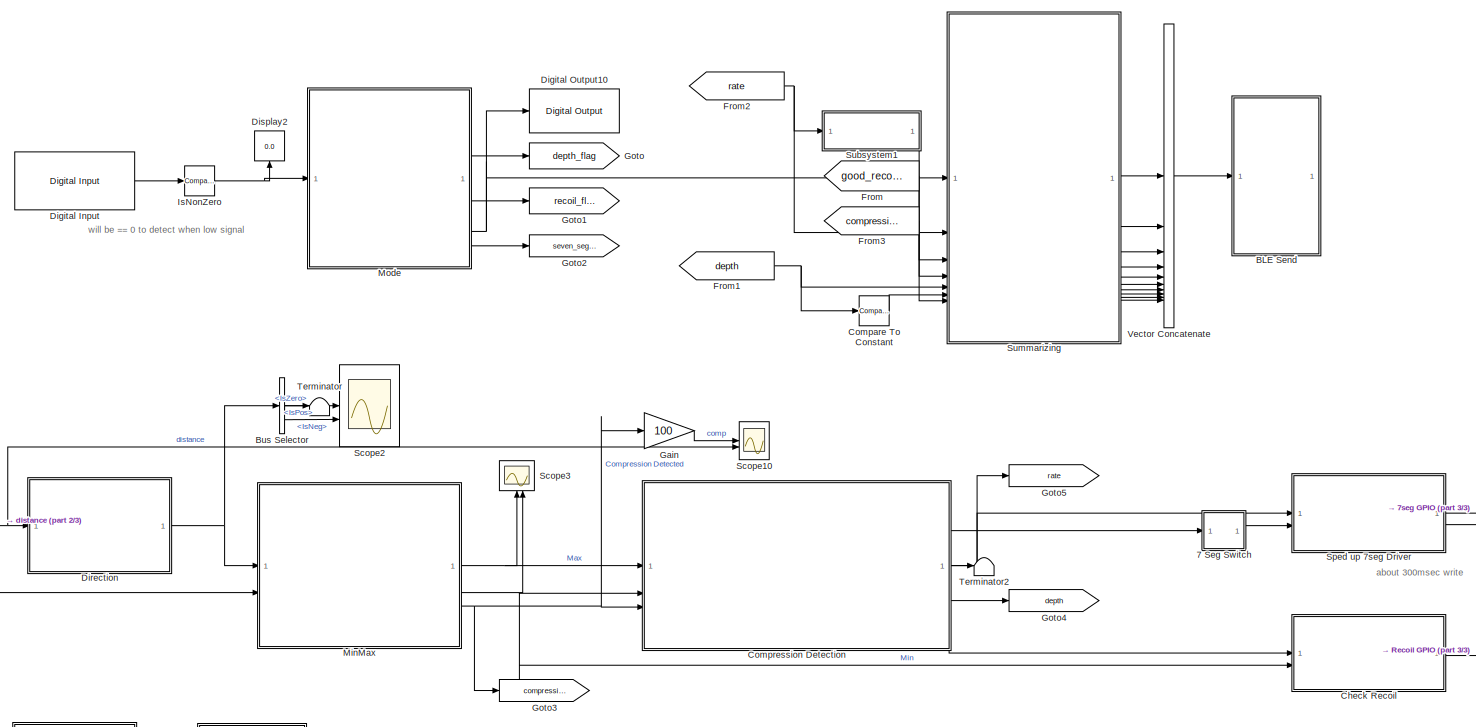
[diagram: root canvas - part 1/3, center side, full height]
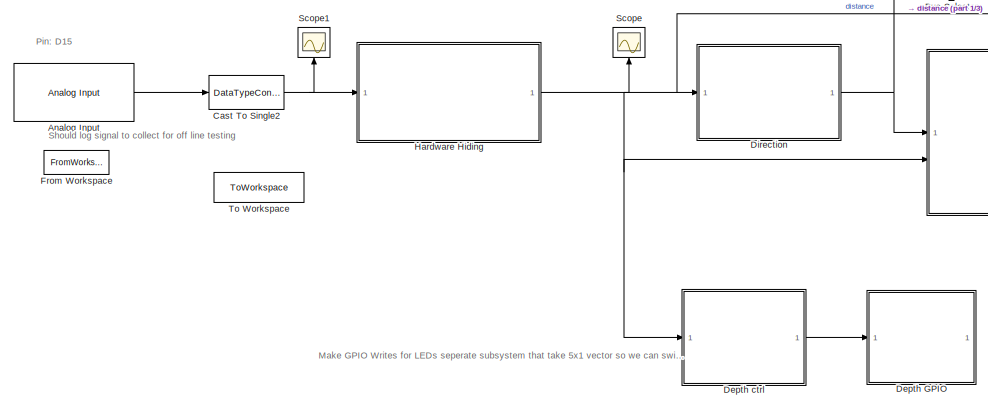
[diagram: root canvas - part 2/3, bottom left region]
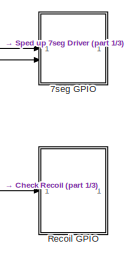
[diagram: root canvas - part 3/3, bottom right region]
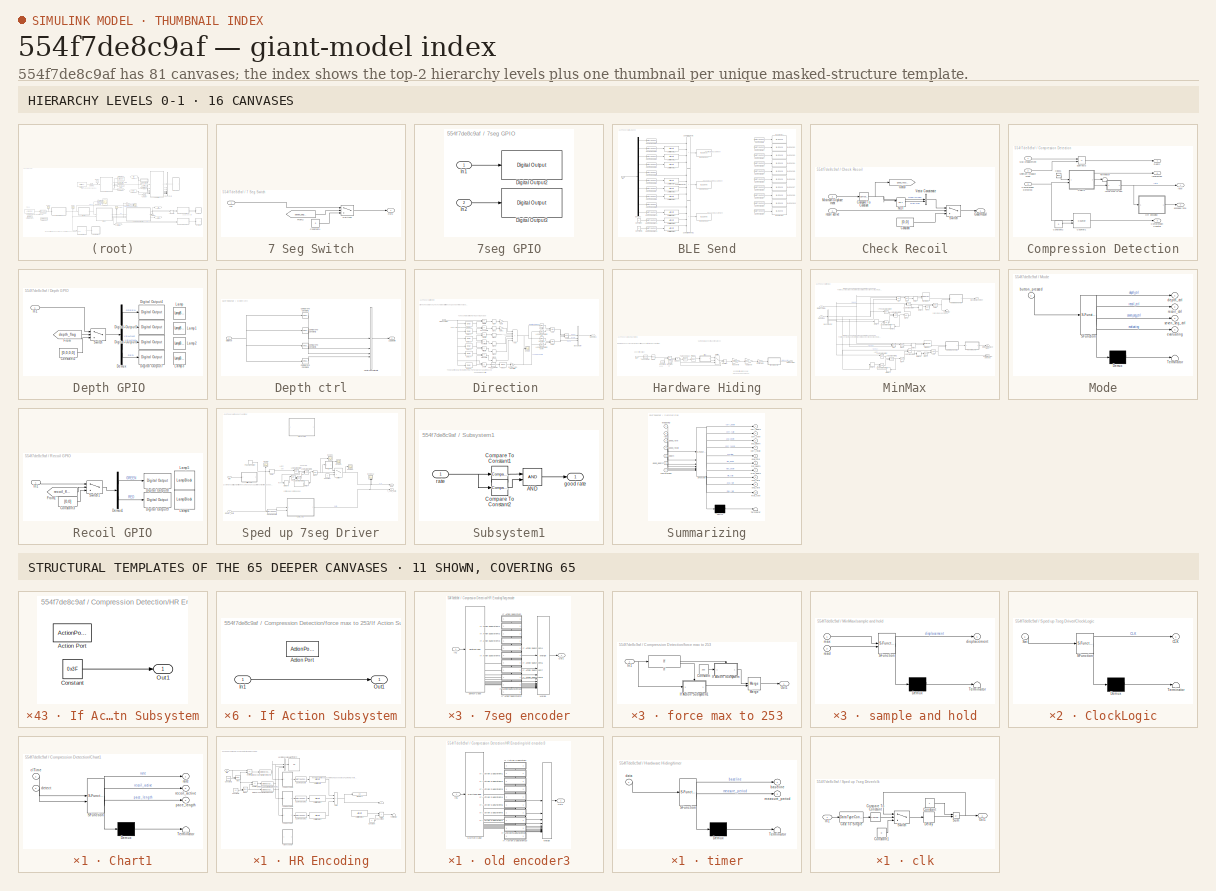
[diagram: thumbnail index - top-2 hierarchy levels (16 canvases) + 11 structural-template representatives of the remaining 65 canvases]
MODEL slx_554f7de8c9af
KIND model
CONFIG AbsTol = auto
CONFIG EnableMultiTasking = off
CONFIG FixedStep = 1e-3
CONFIG MaxStep = auto
CONFIG MinStep = auto
CONFIG RelTol = 1e-3
CONFIG SampleTimeConstraint = Unconstrained
CONFIG SolverName = FixedStepAuto
CONFIG StartTime = 0.0
CONFIG StopTime = inf
BLOCK [SubSystem] 7 Seg Switch
BLOCK [Constant] 7 Seg Switch/Constant1
  Value = 0
BLOCK [From] 7 Seg Switch/From2
  GotoTag = seven_seg_flag
  TagVisibility = global
BLOCK [Inport] 7 Seg Switch/In1
BLOCK [Outport] 7 Seg Switch/Out1
BLOCK [Switch] 7 Seg Switch/Switch2
  Criteria = u2 > Threshold
  InputSameDT = off
  SaturateOnIntegerOverflow = off
BLOCK [SubSystem] 7seg GPIO
BLOCK [Reference] 7seg GPIO/Digital Output2  REF=arduinolib/Digital Output
  SourceBlock = arduinolib/Digital Output
  SourceType = Arduino Digital Output
BLOCK [Reference] 7seg GPIO/Digital Output3  REF=arduinolib/Digital Output
  SourceBlock = arduinolib/Digital Output
  SourceType = Arduino Digital Output
BLOCK [Inport] 7seg GPIO/In1
BLOCK [Inport] 7seg GPIO/In2
  Port = 2
BLOCK [Reference] Analog Input  REF=arduinolib/Analog Input
  SourceBlock = arduinolib/Analog Input
  SourceType = Arduino Analog Input
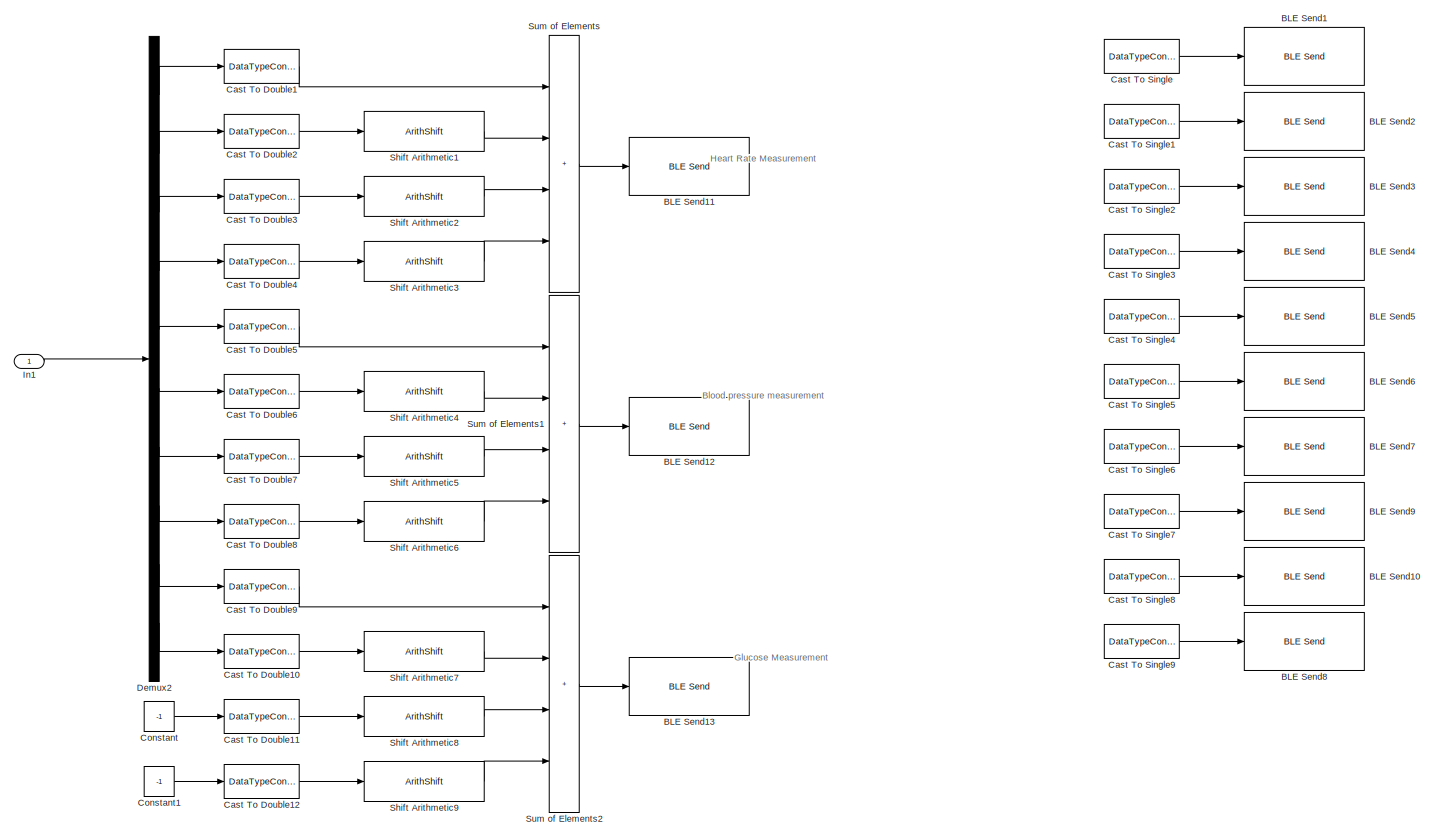
[diagram: BLE Send - part 1/1, most of the canvas]
BLOCK [SubSystem] BLE Send
BLOCK [Reference] BLE Send/BLE Send1  REF=arduinolib/BLE Send
  Commented = on
  SourceBlock = arduinolib/BLE Send
  SourceType = codertarget.arduinobase.internal.arduinoBLESend
BLOCK [Reference] BLE Send/BLE Send10  REF=arduinolib/BLE Send
  Commented = on
  SourceBlock = arduinolib/BLE Send
  SourceType = codertarget.arduinobase.internal.arduinoBLESend
BLOCK [Reference] BLE Send/BLE Send11  REF=arduinolib/BLE Send
  SourceBlock = arduinolib/BLE Send
  SourceType = codertarget.arduinobase.internal.arduinoBLESend
BLOCK [Reference] BLE Send/BLE Send12  REF=arduinolib/BLE Send
  SourceBlock = arduinolib/BLE Send
  SourceType = codertarget.arduinobase.internal.arduinoBLESend
BLOCK [Reference] BLE Send/BLE Send13  REF=arduinolib/BLE Send
  SourceBlock = arduinolib/BLE Send
  SourceType = codertarget.arduinobase.internal.arduinoBLESend
BLOCK [Reference] BLE Send/BLE Send2  REF=arduinolib/BLE Send
  Commented = on
  SourceBlock = arduinolib/BLE Send
  SourceType = codertarget.arduinobase.internal.arduinoBLESend
BLOCK [Reference] BLE Send/BLE Send3  REF=arduinolib/BLE Send
  Commented = on
  SourceBlock = arduinolib/BLE Send
  SourceType = codertarget.arduinobase.internal.arduinoBLESend
BLOCK [Reference] BLE Send/BLE Send4  REF=arduinolib/BLE Send
  Commented = on
  SourceBlock = arduinolib/BLE Send
  SourceType = codertarget.arduinobase.internal.arduinoBLESend
BLOCK [Reference] BLE Send/BLE Send5  REF=arduinolib/BLE Send
  Commented = on
  SourceBlock = arduinolib/BLE Send
  SourceType = codertarget.arduinobase.internal.arduinoBLESend
BLOCK [Reference] BLE Send/BLE Send6  REF=arduinolib/BLE Send
  Commented = on
  SourceBlock = arduinolib/BLE Send
  SourceType = codertarget.arduinobase.internal.arduinoBLESend
BLOCK [Reference] BLE Send/BLE Send7  REF=arduinolib/BLE Send
  Commented = on
  SourceBlock = arduinolib/BLE Send
  SourceType = codertarget.arduinobase.internal.arduinoBLESend
BLOCK [Reference] BLE Send/BLE Send8  REF=arduinolib/BLE Send
  Commented = on
  SourceBlock = arduinolib/BLE Send
  SourceType = codertarget.arduinobase.internal.arduinoBLESend
BLOCK [Reference] BLE Send/BLE Send9  REF=arduinolib/BLE Send
  Commented = on
  SourceBlock = arduinolib/BLE Send
  SourceType = codertarget.arduinobase.internal.arduinoBLESend
BLOCK [DataTypeConversion] BLE Send/Cast To Double1
  OutDataTypeStr = uint32
  RndMeth = Floor
  SaturateOnIntegerOverflow = off
BLOCK [DataTypeConversion] BLE Send/Cast To Double10
  OutDataTypeStr = uint32
  RndMeth = Floor
  SaturateOnIntegerOverflow = off
BLOCK [DataTypeConversion] BLE Send/Cast To Double11
  OutDataTypeStr = uint32
  RndMeth = Floor
  SaturateOnIntegerOverflow = off
BLOCK [DataTypeConversion] BLE Send/Cast To Double12
  OutDataTypeStr = uint32
  RndMeth = Floor
  SaturateOnIntegerOverflow = off
BLOCK [DataTypeConversion] BLE Send/Cast To Double2
  OutDataTypeStr = uint32
  RndMeth = Floor
  SaturateOnIntegerOverflow = off
BLOCK [DataTypeConversion] BLE Send/Cast To Double3
  OutDataTypeStr = uint32
  RndMeth = Floor
  SaturateOnIntegerOverflow = off
BLOCK [DataTypeConversion] BLE Send/Cast To Double4
  OutDataTypeStr = uint32
  RndMeth = Floor
  SaturateOnIntegerOverflow = off
BLOCK [DataTypeConversion] BLE Send/Cast To Double5
  OutDataTypeStr = uint32
  RndMeth = Floor
  SaturateOnIntegerOverflow = off
BLOCK [DataTypeConversion] BLE Send/Cast To Double6
  OutDataTypeStr = uint32
  RndMeth = Floor
  SaturateOnIntegerOverflow = off
BLOCK [DataTypeConversion] BLE Send/Cast To Double7
  OutDataTypeStr = uint32
  RndMeth = Floor
  SaturateOnIntegerOverflow = off
BLOCK [DataTypeConversion] BLE Send/Cast To Double8
  OutDataTypeStr = uint32
  RndMeth = Floor
  SaturateOnIntegerOverflow = off
BLOCK [DataTypeConversion] BLE Send/Cast To Double9
  OutDataTypeStr = uint32
  RndMeth = Floor
  SaturateOnIntegerOverflow = off
BLOCK [DataTypeConversion] BLE Send/Cast To Single
  Commented = on
  OutDataTypeStr = int8
  RndMeth = Floor
  SaturateOnIntegerOverflow = off
BLOCK [DataTypeConversion] BLE Send/Cast To Single1
  Commented = on
  OutDataTypeStr = int8
  RndMeth = Floor
  SaturateOnIntegerOverflow = off
BLOCK [DataTypeConversion] BLE Send/Cast To Single2
  Commented = on
  OutDataTypeStr = int8
  RndMeth = Floor
  SaturateOnIntegerOverflow = off
BLOCK [DataTypeConversion] BLE Send/Cast To Single3
  Commented = on
  OutDataTypeStr = int8
  RndMeth = Floor
  SaturateOnIntegerOverflow = off
BLOCK [DataTypeConversion] BLE Send/Cast To Single4
  Commented = on
  OutDataTypeStr = int8
  RndMeth = Floor
  SaturateOnIntegerOverflow = off
BLOCK [DataTypeConversion] BLE Send/Cast To Single5
  Commented = on
  OutDataTypeStr = int8
  RndMeth = Floor
  SaturateOnIntegerOverflow = off
BLOCK [DataTypeConversion] BLE Send/Cast To Single6
  Commented = on
  OutDataTypeStr = int8
  RndMeth = Floor
  SaturateOnIntegerOverflow = off
BLOCK [DataTypeConversion] BLE Send/Cast To Single7
  Commented = on
  OutDataTypeStr = int8
  RndMeth = Floor
  SaturateOnIntegerOverflow = off
BLOCK [DataTypeConversion] BLE Send/Cast To Single8
  Commented = on
  OutDataTypeStr = int8
  RndMeth = Floor
  SaturateOnIntegerOverflow = off
BLOCK [DataTypeConversion] BLE Send/Cast To Single9
  Commented = on
  OutDataTypeStr = int8
  RndMeth = Floor
  SaturateOnIntegerOverflow = off
BLOCK [Constant] BLE Send/Constant
  Value = -1
BLOCK [Constant] BLE Send/Constant1
  Value = -1
BLOCK [Demux] BLE Send/Demux2
  Outputs = 10
BLOCK [Inport] BLE Send/In1
BLOCK [ArithShift] BLE Send/Shift Arithmetic1
  BitShiftDirection = Left
  BitShiftNumber = 8
  InputPortMap = u0
BLOCK [ArithShift] BLE Send/Shift Arithmetic2
  BitShiftDirection = Left
  BitShiftNumber = 16
  InputPortMap = u0
BLOCK [ArithShift] BLE Send/Shift Arithmetic3
  BitShiftDirection = Left
  BitShiftNumber = 24
  InputPortMap = u0
BLOCK [ArithShift] BLE Send/Shift Arithmetic4
  BitShiftDirection = Left
  BitShiftNumber = 8
  InputPortMap = u0
BLOCK [ArithShift] BLE Send/Shift Arithmetic5
  BitShiftDirection = Left
  BitShiftNumber = 16
  InputPortMap = u0
BLOCK [ArithShift] BLE Send/Shift Arithmetic6
  BitShiftDirection = Left
  BitShiftNumber = 24
  InputPortMap = u0
BLOCK [ArithShift] BLE Send/Shift Arithmetic7
  BitShiftDirection = Left
  BitShiftNumber = 8
  InputPortMap = u0
BLOCK [ArithShift] BLE Send/Shift Arithmetic8
  BitShiftDirection = Left
  BitShiftNumber = 16
  InputPortMap = u0
BLOCK [ArithShift] BLE Send/Shift Arithmetic9
  BitShiftDirection = Left
  BitShiftNumber = 24
  InputPortMap = u0
BLOCK [Sum] BLE Send/Sum of Elements
  IconShape = rectangular
  Inputs = ++++
BLOCK [Sum] BLE Send/Sum of Elements1
  IconShape = rectangular
  Inputs = ++++
BLOCK [Sum] BLE Send/Sum of Elements2
  IconShape = rectangular
  Inputs = ++++
BLOCK [BusSelector] Bus Selector
  OutputSignals = IsPos,IsZero,IsNeg
BLOCK [DataTypeConversion] Cast To Single2
  OutDataTypeStr = single
  RndMeth = Floor
  SaturateOnIntegerOverflow = off
BLOCK [SubSystem] Check Recoil
BLOCK [Reference] Check Recoil/Compare To Constant  REF=simulink/Logic and Bit
Operations/Compare
To Constant
  SourceBlock = simulink/Logic and Bit\nOperations/Compare\nTo Constant
  SourceType = Compare To Constant
BLOCK [Constant] Check Recoil/Constant
  Value = [0,0]
BLOCK [Outport] Check Recoil/Good Recoil
BLOCK [Goto] Check Recoil/Goto3
  GotoTag = good_recoil
  TagVisibility = global
BLOCK [Inport] Check Recoil/Minimum Displacement
  Port = 2
BLOCK [Logic] Check Recoil/NOT
  AllPortsSameDT = off
  IconShape = distinctive
  Operator = NOT
  OutDataTypeStr = boolean
BLOCK [Switch] Check Recoil/Switch
  Criteria = u2 > Threshold
  InputSameDT = off
  SaturateOnIntegerOverflow = off
BLOCK [Concatenate] Check Recoil/Vector Concatenate
BLOCK [Inport] Check Recoil/recoil active
BLOCK [Reference] Compare To Constant  REF=simulink/Logic and Bit
Operations/Compare
To Constant
  SourceBlock = simulink/Logic and Bit\nOperations/Compare\nTo Constant
  SourceType = Compare To Constant
BLOCK [SubSystem] Compression Detection
BLOCK [SubSystem] Compression Detection/Chart1
  ErrorFcn = Stateflow.Translate.translate
  PermitHierarchicalResolution = ExplicitOnly
  PortSchema = {"entries":[{"content":{"sides":[{"content":{"connectorIds":["In1","In2"]},"type":"ConnectorPlacement.EquallySpacedRectSide","uuid":"de3a9b50-7e12-4e71-b702-6c1235bf285b"},{"content":{"connectorIds":["Out2","Out3","Out1"],"side":"RIGHT"},"type":"ConnectorPlacement.EquallySpacedRectSide","uuid":"e642841f-5679-4a41-b533-b1ac7ef5353b"},{"content":{"connectorIds":[],"side":"TOP"},"type":"ConnectorPlac...<+260ch>
  SFBlockType = Chart
  TreatAsAtomicUnit = on
BLOCK [Demux] Compression Detection/Chart1/ Demux 
  Outputs = 1
BLOCK [S-Function] Compression Detection/Chart1/ SFunction 
  EnableBusSupport = on
  FunctionName = sf_sfun
  PortCounts = [2 4]
  SFcnIsStateOwnerBlock = off
  SFunctionDeploymentMode = off
  Tag = Stateflow S-Function 12
BLOCK [Terminator] Compression Detection/Chart1/ Terminator 
BLOCK [Inport] Compression Detection/Chart1/clTime
BLOCK [Inport] Compression Detection/Chart1/detect
  Port = 2
BLOCK [Outport] Compression Detection/Chart1/pace_length
  Port = 3
BLOCK [Outport] Compression Detection/Chart1/rate
BLOCK [Outport] Compression Detection/Chart1/recoil_active
  Port = 2
BLOCK [Clock] Compression Detection/Clock1
BLOCK [Outport] Compression Detection/Compression Counter
  Port = 3
BLOCK [Inport] Compression Detection/Compression Detected
  Port = 3
BLOCK [Constant] Compression Detection/Constant2
  Commented = on
  Value = 0
BLOCK [Reference] Compression Detection/Counter1  REF=dspswit3/Counter
  Commented = on
  SourceBlock = dspswit3/Counter
  SourceType = Counter
BLOCK [Outport] Compression Detection/Depth
  Port = 4
BLOCK [SubSystem] Compression Detection/HR Encoding
BLOCK [Outport] Compression Detection/HR Encoding/ 
BLOCK [SubSystem] Compression Detection/HR Encoding/7seg encoder
BLOCK [SubSystem] Compression Detection/HR Encoding/7seg encoder/If Action Subsystem
  TreatAsAtomicUnit = on
BLOCK [ActionPort] Compression Detection/HR Encoding/7seg encoder/If Action Subsystem/Action Port
  ActionPortLabel = case [ 0 ]:
BLOCK [Constant] Compression Detection/HR Encoding/7seg encoder/If Action Subsystem/Constant
  Value = 0x3F
BLOCK [Outport] Compression Detection/HR Encoding/7seg encoder/If Action Subsystem/Out1
BLOCK [SubSystem] Compression Detection/HR Encoding/7seg encoder/If Action Subsystem1
  TreatAsAtomicUnit = on
BLOCK [ActionPort] Compression Detection/HR Encoding/7seg encoder/If Action Subsystem1/Action Port
  ActionPortLabel = case [ 1 ]:
BLOCK [Constant] Compression Detection/HR Encoding/7seg encoder/If Action Subsystem1/Constant
  Value = 0x06
BLOCK [Outport] Compression Detection/HR Encoding/7seg encoder/If Action Subsystem1/Out1
BLOCK [SubSystem] Compression Detection/HR Encoding/7seg encoder/If Action Subsystem10
  TreatAsAtomicUnit = on
BLOCK [ActionPort] Compression Detection/HR Encoding/7seg encoder/If Action Subsystem10/Action Port
  ActionPortLabel = case [ 9 ]:
BLOCK [Constant] Compression Detection/HR Encoding/7seg encoder/If Action Subsystem10/Constant
  Value = 0x6F
BLOCK [Outport] Compression Detection/HR Encoding/7seg encoder/If Action Subsystem10/Out1
BLOCK [SubSystem] Compression Detection/HR Encoding/7seg encoder/If Action Subsystem2
  TreatAsAtomicUnit = on
BLOCK [ActionPort] Compression Detection/HR Encoding/7seg encoder/If Action Subsystem2/Action Port
  ActionPortLabel = case [ 2 ]:
BLOCK [Constant] Compression Detection/HR Encoding/7seg encoder/If Action Subsystem2/Constant
  Value = 0x5B
BLOCK [Outport] Compression Detection/HR Encoding/7seg encoder/If Action Subsystem2/Out1
BLOCK [SubSystem] Compression Detection/HR Encoding/7seg encoder/If Action Subsystem3
  TreatAsAtomicUnit = on
BLOCK [ActionPort] Compression Detection/HR Encoding/7seg encoder/If Action Subsystem3/Action Port
  ActionPortLabel = case [ 3 ]:
BLOCK [Constant] Compression Detection/HR Encoding/7seg encoder/If Action Subsystem3/Constant
  Value = 0x4F
BLOCK [Outport] Compression Detection/HR Encoding/7seg encoder/If Action Subsystem3/Out1
BLOCK [SubSystem] Compression Detection/HR Encoding/7seg encoder/If Action Subsystem4
  TreatAsAtomicUnit = on
BLOCK [ActionPort] Compression Detection/HR Encoding/7seg encoder/If Action Subsystem4/Action Port
  ActionPortLabel = case [ 4 ]:
BLOCK [Constant] Compression Detection/HR Encoding/7seg encoder/If Action Subsystem4/Constant
  Value = 0x66
BLOCK [Outport] Compression Detection/HR Encoding/7seg encoder/If Action Subsystem4/Out1
BLOCK [SubSystem] Compression Detection/HR Encoding/7seg encoder/If Action Subsystem5
  TreatAsAtomicUnit = on
BLOCK [ActionPort] Compression Detection/HR Encoding/7seg encoder/If Action Subsystem5/Action Port
  ActionPortLabel = case [ 5 ]:
BLOCK [Constant] Compression Detection/HR Encoding/7seg encoder/If Action Subsystem5/Constant
  Value = 0x6D
BLOCK [Outport] Compression Detection/HR Encoding/7seg encoder/If Action Subsystem5/Out1
BLOCK [SubSystem] Compression Detection/HR Encoding/7seg encoder/If Action Subsystem6
  TreatAsAtomicUnit = on
BLOCK [ActionPort] Compression Detection/HR Encoding/7seg encoder/If Action Subsystem6/Action Port
  ActionPortLabel = case [ 6 ]:
BLOCK [Constant] Compression Detection/HR Encoding/7seg encoder/If Action Subsystem6/Constant
  Value = 0x7D
BLOCK [Outport] Compression Detection/HR Encoding/7seg encoder/If Action Subsystem6/Out1
BLOCK [SubSystem] Compression Detection/HR Encoding/7seg encoder/If Action Subsystem7
  TreatAsAtomicUnit = on
BLOCK [ActionPort] Compression Detection/HR Encoding/7seg encoder/If Action Subsystem7/Action Port
  ActionPortLabel = case [ 7 ]:
BLOCK [Constant] Compression Detection/HR Encoding/7seg encoder/If Action Subsystem7/Constant
  Value = 0x07
BLOCK [Outport] Compression Detection/HR Encoding/7seg encoder/If Action Subsystem7/Out1
BLOCK [SubSystem] Compression Detection/HR Encoding/7seg encoder/If Action Subsystem8
  TreatAsAtomicUnit = on
BLOCK [ActionPort] Compression Detection/HR Encoding/7seg encoder/If Action Subsystem8/Action Port
  ActionPortLabel = case [ 8 ]:
BLOCK [Constant] Compression Detection/HR Encoding/7seg encoder/If Action Subsystem8/Constant
  Value = 0x7F
BLOCK [Outport] Compression Detection/HR Encoding/7seg encoder/If Action Subsystem8/Out1
BLOCK [SubSystem] Compression Detection/HR Encoding/7seg encoder/If Action Subsystem9
  TreatAsAtomicUnit = on
BLOCK [ActionPort] Compression Detection/HR Encoding/7seg encoder/If Action Subsystem9/Action Port
  ActionPortLabel = default:
BLOCK [Constant] Compression Detection/HR Encoding/7seg encoder/If Action Subsystem9/Constant
  Value = 0x0
BLOCK [Outport] Compression Detection/HR Encoding/7seg encoder/If Action Subsystem9/Out1
BLOCK [Inport] Compression Detection/HR Encoding/7seg encoder/In1
BLOCK [Merge] Compression Detection/HR Encoding/7seg encoder/Merge
  InitialOutput = [0]
  Inputs = 11
BLOCK [Outport] Compression Detection/HR Encoding/7seg encoder/Out1
BLOCK [SwitchCase] Compression Detection/HR Encoding/7seg encoder/Switch Case
  CaseConditions = {0,1,2,3,4,5,6,7,8,9}
BLOCK [SubSystem] Compression Detection/HR Encoding/7seg encoder1
BLOCK [SubSystem] Compression Detection/HR Encoding/7seg encoder1/If Action Subsystem
  TreatAsAtomicUnit = on
BLOCK [ActionPort] Compression Detection/HR Encoding/7seg encoder1/If Action Subsystem/Action Port
  ActionPortLabel = case [ 0 ]:
BLOCK [Constant] Compression Detection/HR Encoding/7seg encoder1/If Action Subsystem/Constant
  Value = 0x3F
BLOCK [Outport] Compression Detection/HR Encoding/7seg encoder1/If Action Subsystem/Out1
BLOCK [SubSystem] Compression Detection/HR Encoding/7seg encoder1/If Action Subsystem1
  TreatAsAtomicUnit = on
BLOCK [ActionPort] Compression Detection/HR Encoding/7seg encoder1/If Action Subsystem1/Action Port
  ActionPortLabel = case [ 1 ]:
BLOCK [Constant] Compression Detection/HR Encoding/7seg encoder1/If Action Subsystem1/Constant
  Value = 0x06
BLOCK [Outport] Compression Detection/HR Encoding/7seg encoder1/If Action Subsystem1/Out1
BLOCK [SubSystem] Compression Detection/HR Encoding/7seg encoder1/If Action Subsystem10
  TreatAsAtomicUnit = on
BLOCK [ActionPort] Compression Detection/HR Encoding/7seg encoder1/If Action Subsystem10/Action Port
  ActionPortLabel = case [ 9 ]:
BLOCK [Constant] Compression Detection/HR Encoding/7seg encoder1/If Action Subsystem10/Constant
  Value = 0x6F
BLOCK [Outport] Compression Detection/HR Encoding/7seg encoder1/If Action Subsystem10/Out1
BLOCK [SubSystem] Compression Detection/HR Encoding/7seg encoder1/If Action Subsystem2
  TreatAsAtomicUnit = on
BLOCK [ActionPort] Compression Detection/HR Encoding/7seg encoder1/If Action Subsystem2/Action Port
  ActionPortLabel = case [ 2 ]:
BLOCK [Constant] Compression Detection/HR Encoding/7seg encoder1/If Action Subsystem2/Constant
  Value = 0x5B
BLOCK [Outport] Compression Detection/HR Encoding/7seg encoder1/If Action Subsystem2/Out1
BLOCK [SubSystem] Compression Detection/HR Encoding/7seg encoder1/If Action Subsystem3
  TreatAsAtomicUnit = on
BLOCK [ActionPort] Compression Detection/HR Encoding/7seg encoder1/If Action Subsystem3/Action Port
  ActionPortLabel = case [ 3 ]:
BLOCK [Constant] Compression Detection/HR Encoding/7seg encoder1/If Action Subsystem3/Constant
  Value = 0x4F
BLOCK [Outport] Compression Detection/HR Encoding/7seg encoder1/If Action Subsystem3/Out1
BLOCK [SubSystem] Compression Detection/HR Encoding/7seg encoder1/If Action Subsystem4
  TreatAsAtomicUnit = on
BLOCK [ActionPort] Compression Detection/HR Encoding/7seg encoder1/If Action Subsystem4/Action Port
  ActionPortLabel = case [ 4 ]:
BLOCK [Constant] Compression Detection/HR Encoding/7seg encoder1/If Action Subsystem4/Constant
  Value = 0x66
BLOCK [Outport] Compression Detection/HR Encoding/7seg encoder1/If Action Subsystem4/Out1
BLOCK [SubSystem] Compression Detection/HR Encoding/7seg encoder1/If Action Subsystem5
  TreatAsAtomicUnit = on
BLOCK [ActionPort] Compression Detection/HR Encoding/7seg encoder1/If Action Subsystem5/Action Port
  ActionPortLabel = case [ 5 ]:
BLOCK [Constant] Compression Detection/HR Encoding/7seg encoder1/If Action Subsystem5/Constant
  Value = 0x6D
BLOCK [Outport] Compression Detection/HR Encoding/7seg encoder1/If Action Subsystem5/Out1
BLOCK [SubSystem] Compression Detection/HR Encoding/7seg encoder1/If Action Subsystem6
  TreatAsAtomicUnit = on
BLOCK [ActionPort] Compression Detection/HR Encoding/7seg encoder1/If Action Subsystem6/Action Port
  ActionPortLabel = case [ 6 ]:
BLOCK [Constant] Compression Detection/HR Encoding/7seg encoder1/If Action Subsystem6/Constant
  Value = 0x7D
BLOCK [Outport] Compression Detection/HR Encoding/7seg encoder1/If Action Subsystem6/Out1
BLOCK [SubSystem] Compression Detection/HR Encoding/7seg encoder1/If Action Subsystem7
  TreatAsAtomicUnit = on
BLOCK [ActionPort] Compression Detection/HR Encoding/7seg encoder1/If Action Subsystem7/Action Port
  ActionPortLabel = case [ 7 ]:
BLOCK [Constant] Compression Detection/HR Encoding/7seg encoder1/If Action Subsystem7/Constant
  Value = 0x07
BLOCK [Outport] Compression Detection/HR Encoding/7seg encoder1/If Action Subsystem7/Out1
BLOCK [SubSystem] Compression Detection/HR Encoding/7seg encoder1/If Action Subsystem8
  TreatAsAtomicUnit = on
BLOCK [ActionPort] Compression Detection/HR Encoding/7seg encoder1/If Action Subsystem8/Action Port
  ActionPortLabel = case [ 8 ]:
BLOCK [Constant] Compression Detection/HR Encoding/7seg encoder1/If Action Subsystem8/Constant
  Value = 0x7F
BLOCK [Outport] Compression Detection/HR Encoding/7seg encoder1/If Action Subsystem8/Out1
BLOCK [SubSystem] Compression Detection/HR Encoding/7seg encoder1/If Action Subsystem9
  TreatAsAtomicUnit = on
BLOCK [ActionPort] Compression Detection/HR Encoding/7seg encoder1/If Action Subsystem9/Action Port
  ActionPortLabel = default:
BLOCK [Constant] Compression Detection/HR Encoding/7seg encoder1/If Action Subsystem9/Constant
  Value = 0x0
BLOCK [Outport] Compression Detection/HR Encoding/7seg encoder1/If Action Subsystem9/Out1
BLOCK [Inport] Compression Detection/HR Encoding/7seg encoder1/In1
BLOCK [Merge] Compression Detection/HR Encoding/7seg encoder1/Merge
  InitialOutput = [0]
  Inputs = 11
BLOCK [Outport] Compression Detection/HR Encoding/7seg encoder1/Out1
BLOCK [SwitchCase] Compression Detection/HR Encoding/7seg encoder1/Switch Case
  CaseConditions = {0,1,2,3,4,5,6,7,8,9}
BLOCK [SubSystem] Compression Detection/HR Encoding/7seg encoder2
BLOCK [SubSystem] Compression Detection/HR Encoding/7seg encoder2/If Action Subsystem
  TreatAsAtomicUnit = on
BLOCK [ActionPort] Compression Detection/HR Encoding/7seg encoder2/If Action Subsystem/Action Port
  ActionPortLabel = case [ 0 ]:
BLOCK [Constant] Compression Detection/HR Encoding/7seg encoder2/If Action Subsystem/Constant
  Value = 0x3F
BLOCK [Outport] Compression Detection/HR Encoding/7seg encoder2/If Action Subsystem/Out1
BLOCK [SubSystem] Compression Detection/HR Encoding/7seg encoder2/If Action Subsystem1
  TreatAsAtomicUnit = on
BLOCK [ActionPort] Compression Detection/HR Encoding/7seg encoder2/If Action Subsystem1/Action Port
  ActionPortLabel = case [ 1 ]:
BLOCK [Constant] Compression Detection/HR Encoding/7seg encoder2/If Action Subsystem1/Constant
  Value = 0x06
BLOCK [Outport] Compression Detection/HR Encoding/7seg encoder2/If Action Subsystem1/Out1
BLOCK [SubSystem] Compression Detection/HR Encoding/7seg encoder2/If Action Subsystem10
  TreatAsAtomicUnit = on
BLOCK [ActionPort] Compression Detection/HR Encoding/7seg encoder2/If Action Subsystem10/Action Port
  ActionPortLabel = case [ 9 ]:
BLOCK [Constant] Compression Detection/HR Encoding/7seg encoder2/If Action Subsystem10/Constant
  Value = 0x6F
BLOCK [Outport] Compression Detection/HR Encoding/7seg encoder2/If Action Subsystem10/Out1
BLOCK [SubSystem] Compression Detection/HR Encoding/7seg encoder2/If Action Subsystem2
  TreatAsAtomicUnit = on
BLOCK [ActionPort] Compression Detection/HR Encoding/7seg encoder2/If Action Subsystem2/Action Port
  ActionPortLabel = case [ 2 ]:
BLOCK [Constant] Compression Detection/HR Encoding/7seg encoder2/If Action Subsystem2/Constant
  Value = 0x5B
BLOCK [Outport] Compression Detection/HR Encoding/7seg encoder2/If Action Subsystem2/Out1
BLOCK [SubSystem] Compression Detection/HR Encoding/7seg encoder2/If Action Subsystem3
  TreatAsAtomicUnit = on
BLOCK [ActionPort] Compression Detection/HR Encoding/7seg encoder2/If Action Subsystem3/Action Port
  ActionPortLabel = case [ 3 ]:
BLOCK [Constant] Compression Detection/HR Encoding/7seg encoder2/If Action Subsystem3/Constant
  Value = 0x4F
BLOCK [Outport] Compression Detection/HR Encoding/7seg encoder2/If Action Subsystem3/Out1
BLOCK [SubSystem] Compression Detection/HR Encoding/7seg encoder2/If Action Subsystem4
  TreatAsAtomicUnit = on
BLOCK [ActionPort] Compression Detection/HR Encoding/7seg encoder2/If Action Subsystem4/Action Port
  ActionPortLabel = case [ 4 ]:
BLOCK [Constant] Compression Detection/HR Encoding/7seg encoder2/If Action Subsystem4/Constant
  Value = 0x66
BLOCK [Outport] Compression Detection/HR Encoding/7seg encoder2/If Action Subsystem4/Out1
BLOCK [SubSystem] Compression Detection/HR Encoding/7seg encoder2/If Action Subsystem5
  TreatAsAtomicUnit = on
BLOCK [ActionPort] Compression Detection/HR Encoding/7seg encoder2/If Action Subsystem5/Action Port
  ActionPortLabel = case [ 5 ]:
BLOCK [Constant] Compression Detection/HR Encoding/7seg encoder2/If Action Subsystem5/Constant
  Value = 0x6D
BLOCK [Outport] Compression Detection/HR Encoding/7seg encoder2/If Action Subsystem5/Out1
BLOCK [SubSystem] Compression Detection/HR Encoding/7seg encoder2/If Action Subsystem6
  TreatAsAtomicUnit = on
BLOCK [ActionPort] Compression Detection/HR Encoding/7seg encoder2/If Action Subsystem6/Action Port
  ActionPortLabel = case [ 6 ]:
BLOCK [Constant] Compression Detection/HR Encoding/7seg encoder2/If Action Subsystem6/Constant
  Value = 0x7D
BLOCK [Outport] Compression Detection/HR Encoding/7seg encoder2/If Action Subsystem6/Out1
BLOCK [SubSystem] Compression Detection/HR Encoding/7seg encoder2/If Action Subsystem7
  TreatAsAtomicUnit = on
BLOCK [ActionPort] Compression Detection/HR Encoding/7seg encoder2/If Action Subsystem7/Action Port
  ActionPortLabel = case [ 7 ]:
BLOCK [Constant] Compression Detection/HR Encoding/7seg encoder2/If Action Subsystem7/Constant
  Value = 0x07
BLOCK [Outport] Compression Detection/HR Encoding/7seg encoder2/If Action Subsystem7/Out1
BLOCK [SubSystem] Compression Detection/HR Encoding/7seg encoder2/If Action Subsystem8
  TreatAsAtomicUnit = on
BLOCK [ActionPort] Compression Detection/HR Encoding/7seg encoder2/If Action Subsystem8/Action Port
  ActionPortLabel = case [ 8 ]:
BLOCK [Constant] Compression Detection/HR Encoding/7seg encoder2/If Action Subsystem8/Constant
  Value = 0x7F
BLOCK [Outport] Compression Detection/HR Encoding/7seg encoder2/If Action Subsystem8/Out1
BLOCK [SubSystem] Compression Detection/HR Encoding/7seg encoder2/If Action Subsystem9
  TreatAsAtomicUnit = on
BLOCK [ActionPort] Compression Detection/HR Encoding/7seg encoder2/If Action Subsystem9/Action Port
  ActionPortLabel = default:
BLOCK [Constant] Compression Detection/HR Encoding/7seg encoder2/If Action Subsystem9/Constant
  Value = 0x0
BLOCK [Outport] Compression Detection/HR Encoding/7seg encoder2/If Action Subsystem9/Out1
  InitialOutput = [0]
BLOCK [Inport] Compression Detection/HR Encoding/7seg encoder2/In1
BLOCK [Merge] Compression Detection/HR Encoding/7seg encoder2/Merge
  InitialOutput = [0]
  Inputs = 11
BLOCK [Outport] Compression Detection/HR Encoding/7seg encoder2/Out1
BLOCK [SwitchCase] Compression Detection/HR Encoding/7seg encoder2/Switch Case
  CaseConditions = {0,1,2,3,4,5,6,7,8,9}
BLOCK [Sum] Compression Detection/HR Encoding/Add
  IconShape = rectangular
  Inputs = +++
BLOCK [Sum] Compression Detection/HR Encoding/Add1
  Commented = on
  IconShape = rectangular
BLOCK [DataTypeConversion] Compression Detection/HR Encoding/Cast To Double
  OutDataTypeStr = uint32
  RndMeth = Floor
  SaturateOnIntegerOverflow = off
BLOCK [DataTypeConversion] Compression Detection/HR Encoding/Cast To Double1
  OutDataTypeStr = uint32
  RndMeth = Floor
  SaturateOnIntegerOverflow = off
BLOCK [DataTypeConversion] Compression Detection/HR Encoding/Cast To Double2
  OutDataTypeStr = uint32
  RndMeth = Floor
  SaturateOnIntegerOverflow = off
BLOCK [Constant] Compression Detection/HR Encoding/Constant
  Commented = on
  OutDataTypeStr = uint32
BLOCK [Constant] Compression Detection/HR Encoding/Constant1
  Value = 100
BLOCK [Constant] Compression Detection/HR Encoding/Constant2
  Value = 10
BLOCK [Display] Compression Detection/HR Encoding/Display1
  Decimation = 1
  Format = hex (Stored Integer)
BLOCK [Display] Compression Detection/HR Encoding/Display2
  Decimation = 1
BLOCK [Reference] Compression Detection/HR Encoding/Divide by Constant and Round  REF=embmathops/Divide by Constant and Round
  SourceBlock = embmathops/Divide by Constant and Round
  SourceType = fixed.system.DivideByConstantAndRound
BLOCK [Reference] Compression Detection/HR Encoding/Divide by Constant and Round1  REF=embmathops/Divide by Constant and Round
  SourceBlock = embmathops/Divide by Constant and Round
  SourceType = fixed.system.DivideByConstantAndRound
BLOCK [Reference] Compression Detection/HR Encoding/Divide by Constant and Round2  REF=embmathops/Divide by Constant and Round
  SourceBlock = embmathops/Divide by Constant and Round
  SourceType = fixed.system.DivideByConstantAndRound
BLOCK [Math] Compression Detection/HR Encoding/Mod
  Operator = mod
BLOCK [Math] Compression Detection/HR Encoding/Mod1
  Operator = mod
BLOCK [ArithShift] Compression Detection/HR Encoding/Shift Arithmetic
  BitShiftDirection = Left
  InputPortMap = u0
BLOCK [ArithShift] Compression Detection/HR Encoding/Shift Arithmetic1
  BitShiftDirection = Left
  BitShiftNumber = 8
  InputPortMap = u0
BLOCK [ArithShift] Compression Detection/HR Encoding/Shift Arithmetic2
  BitShiftDirection = Left
  BitShiftNumber = 16
  InputPortMap = u0
BLOCK [ArithShift] Compression Detection/HR Encoding/Shift Arithmetic3
  BitShiftDirection = Left
  BitShiftNumber = 1
  Commented = on
  InputPortMap = u0
BLOCK [Sum] Compression Detection/HR Encoding/Subtract
  IconShape = rectangular
  Inputs = +-
BLOCK [Sum] Compression Detection/HR Encoding/Subtract1
  IconShape = rectangular
  Inputs = +-
BLOCK [Terminator] Compression Detection/HR Encoding/Terminator
  Commented = on
BLOCK [Concatenate] Compression Detection/HR Encoding/Vector Concatenate
  NumInputs = 3
BLOCK [SubSystem] Compression Detection/HR Encoding/old encoder3
  Commented = on
BLOCK [SubSystem] Compression Detection/HR Encoding/old encoder3/If Action Subsystem
  TreatAsAtomicUnit = on
BLOCK [ActionPort] Compression Detection/HR Encoding/old encoder3/If Action Subsystem/Action Port
BLOCK [Constant] Compression Detection/HR Encoding/old encoder3/If Action Subsystem/Constant
  Value = 0x3F
BLOCK [Outport] Compression Detection/HR Encoding/old encoder3/If Action Subsystem/Out1
BLOCK [SubSystem] Compression Detection/HR Encoding/old encoder3/If Action Subsystem1
  TreatAsAtomicUnit = on
BLOCK [ActionPort] Compression Detection/HR Encoding/old encoder3/If Action Subsystem1/Action Port
BLOCK [Constant] Compression Detection/HR Encoding/old encoder3/If Action Subsystem1/Constant
  Value = 0x06
BLOCK [Outport] Compression Detection/HR Encoding/old encoder3/If Action Subsystem1/Out1
BLOCK [SubSystem] Compression Detection/HR Encoding/old encoder3/If Action Subsystem10
  TreatAsAtomicUnit = on
BLOCK [ActionPort] Compression Detection/HR Encoding/old encoder3/If Action Subsystem10/Action Port
BLOCK [Constant] Compression Detection/HR Encoding/old encoder3/If Action Subsystem10/Constant
  Value = 0x6F
BLOCK [Outport] Compression Detection/HR Encoding/old encoder3/If Action Subsystem10/Out1
BLOCK [SubSystem] Compression Detection/HR Encoding/old encoder3/If Action Subsystem2
  TreatAsAtomicUnit = on
BLOCK [ActionPort] Compression Detection/HR Encoding/old encoder3/If Action Subsystem2/Action Port
BLOCK [Constant] Compression Detection/HR Encoding/old encoder3/If Action Subsystem2/Constant
  Value = 0x5B
BLOCK [Outport] Compression Detection/HR Encoding/old encoder3/If Action Subsystem2/Out1
BLOCK [SubSystem] Compression Detection/HR Encoding/old encoder3/If Action Subsystem3
  TreatAsAtomicUnit = on
BLOCK [ActionPort] Compression Detection/HR Encoding/old encoder3/If Action Subsystem3/Action Port
BLOCK [Constant] Compression Detection/HR Encoding/old encoder3/If Action Subsystem3/Constant
  Value = 0x4F
BLOCK [Outport] Compression Detection/HR Encoding/old encoder3/If Action Subsystem3/Out1
BLOCK [SubSystem] Compression Detection/HR Encoding/old encoder3/If Action Subsystem4
  TreatAsAtomicUnit = on
BLOCK [ActionPort] Compression Detection/HR Encoding/old encoder3/If Action Subsystem4/Action Port
BLOCK [Constant] Compression Detection/HR Encoding/old encoder3/If Action Subsystem4/Constant
  Value = 0x66
BLOCK [Outport] Compression Detection/HR Encoding/old encoder3/If Action Subsystem4/Out1
BLOCK [SubSystem] Compression Detection/HR Encoding/old encoder3/If Action Subsystem5
  TreatAsAtomicUnit = on
BLOCK [ActionPort] Compression Detection/HR Encoding/old encoder3/If Action Subsystem5/Action Port
BLOCK [Constant] Compression Detection/HR Encoding/old encoder3/If Action Subsystem5/Constant
  Value = 0x6D
BLOCK [Outport] Compression Detection/HR Encoding/old encoder3/If Action Subsystem5/Out1
BLOCK [SubSystem] Compression Detection/HR Encoding/old encoder3/If Action Subsystem6
  TreatAsAtomicUnit = on
BLOCK [ActionPort] Compression Detection/HR Encoding/old encoder3/If Action Subsystem6/Action Port
BLOCK [Constant] Compression Detection/HR Encoding/old encoder3/If Action Subsystem6/Constant
  Value = 0x7D
BLOCK [Outport] Compression Detection/HR Encoding/old encoder3/If Action Subsystem6/Out1
BLOCK [SubSystem] Compression Detection/HR Encoding/old encoder3/If Action Subsystem7
  TreatAsAtomicUnit = on
BLOCK [ActionPort] Compression Detection/HR Encoding/old encoder3/If Action Subsystem7/Action Port
BLOCK [Constant] Compression Detection/HR Encoding/old encoder3/If Action Subsystem7/Constant
  Value = 0x07
BLOCK [Outport] Compression Detection/HR Encoding/old encoder3/If Action Subsystem7/Out1
BLOCK [SubSystem] Compression Detection/HR Encoding/old encoder3/If Action Subsystem8
  TreatAsAtomicUnit = on
BLOCK [ActionPort] Compression Detection/HR Encoding/old encoder3/If Action Subsystem8/Action Port
BLOCK [Constant] Compression Detection/HR Encoding/old encoder3/If Action Subsystem8/Constant
  Value = 0x7F
BLOCK [Outport] Compression Detection/HR Encoding/old encoder3/If Action Subsystem8/Out1
BLOCK [Inport] Compression Detection/HR Encoding/old encoder3/In1
BLOCK [Merge] Compression Detection/HR Encoding/old encoder3/Merge
  Inputs = 10
BLOCK [Outport] Compression Detection/HR Encoding/old encoder3/Out1
BLOCK [SwitchCase] Compression Detection/HR Encoding/old encoder3/Switch Case
  CaseConditions = {0,1,2,3,4,5,6,7,8,9}
  ShowDefaultCase = off
BLOCK [Inport] Compression Detection/HR Encoding/rate
BLOCK [Inport] Compression Detection/Max Displacement
BLOCK [Inport] Compression Detection/Minimum Displacement
  Port = 2
BLOCK [Sum] Compression Detection/Subtract3
  IconShape = rectangular
  Inputs = +-
BLOCK [Terminator] Compression Detection/Terminator
BLOCK [Outport] Compression Detection/encoded rate
  Port = 2
BLOCK [SubSystem] Compression Detection/force max to 253
BLOCK [Constant] Compression Detection/force max to 253/Constant
  Value = 253
BLOCK [If] Compression Detection/force max to 253/If
  IfExpression = u1 > 253
BLOCK [SubSystem] Compression Detection/force max to 253/If Action Subsystem
  TreatAsAtomicUnit = on
BLOCK [ActionPort] Compression Detection/force max to 253/If Action Subsystem/Action Port
  ActionPortLabel = if(u1 > 253)
BLOCK [Inport] Compression Detection/force max to 253/If Action Subsystem/In1
BLOCK [Outport] Compression Detection/force max to 253/If Action Subsystem/Out1
BLOCK [SubSystem] Compression Detection/force max to 253/If Action Subsystem1
  TreatAsAtomicUnit = on
BLOCK [ActionPort] Compression Detection/force max to 253/If Action Subsystem1/Action Port
  ActionPortLabel = else
BLOCK [Inport] Compression Detection/force max to 253/If Action Subsystem1/In1
BLOCK [Outport] Compression Detection/force max to 253/If Action Subsystem1/Out1
BLOCK [Inport] Compression Detection/force max to 253/In1
BLOCK [Merge] Compression Detection/force max to 253/Merge
BLOCK [Outport] Compression Detection/force max to 253/Out1
BLOCK [Outport] Compression Detection/rate
BLOCK [Outport] Compression Detection/recoil active
  Port = 5
BLOCK [SubSystem] Depth GPIO 
BLOCK [Constant] Depth GPIO /Constant2
  Value = [0,0,0,0]
BLOCK [Demux] Depth GPIO /Demux
BLOCK [Reference] Depth GPIO /Digital Output4  REF=arduinolib/Digital Output
  SourceBlock = arduinolib/Digital Output
  SourceType = Arduino Digital Output
BLOCK [Reference] Depth GPIO /Digital Output5  REF=arduinolib/Digital Output
  SourceBlock = arduinolib/Digital Output
  SourceType = Arduino Digital Output
BLOCK [Reference] Depth GPIO /Digital Output6  REF=arduinolib/Digital Output
  SourceBlock = arduinolib/Digital Output
  SourceType = Arduino Digital Output
BLOCK [Reference] Depth GPIO /Digital Output7  REF=arduinolib/Digital Output
  SourceBlock = arduinolib/Digital Output
  SourceType = Arduino Digital Output
BLOCK [From] Depth GPIO /From
  GotoTag = depth_flag
  TagVisibility = global
BLOCK [Inport] Depth GPIO /In1
BLOCK [LampBlock] Depth GPIO /Lamp
  Commented = on
  LabelPosition = Hide
BLOCK [LampBlock] Depth GPIO /Lamp1
  Commented = on
  LabelPosition = Hide
BLOCK [LampBlock] Depth GPIO /Lamp2
  Commented = on
  LabelPosition = Hide
BLOCK [LampBlock] Depth GPIO /Lamp3
  Commented = on
  LabelPosition = Hide
BLOCK [Switch] Depth GPIO /Switch
  Criteria = u2 > Threshold
  InputSameDT = off
  SaturateOnIntegerOverflow = off
BLOCK [SubSystem] Depth ctrl
BLOCK [Reference] Depth ctrl/Compare To Constant1  REF=simulink/Logic and Bit
Operations/Compare
To Constant
  SourceBlock = simulink/Logic and Bit\nOperations/Compare\nTo Constant
  SourceType = Compare To Constant
BLOCK [Reference] Depth ctrl/Compare To Constant2  REF=simulink/Logic and Bit
Operations/Compare
To Constant
  SourceBlock = simulink/Logic and Bit\nOperations/Compare\nTo Constant
  SourceType = Compare To Constant
BLOCK [Reference] Depth ctrl/Compare To Constant3  REF=simulink/Logic and Bit
Operations/Compare
To Constant
  SourceBlock = simulink/Logic and Bit\nOperations/Compare\nTo Constant
  SourceType = Compare To Constant
BLOCK [Reference] Depth ctrl/Compare To Constant4  REF=simulink/Logic and Bit
Operations/Compare
To Constant
  SourceBlock = simulink/Logic and Bit\nOperations/Compare\nTo Constant
  SourceType = Compare To Constant
BLOCK [Outport] Depth ctrl/LED Depth
BLOCK [Concatenate] Depth ctrl/Vector Concatenate
  NumInputs = 4
BLOCK [Inport] Depth ctrl/distance
BLOCK [Reference] Digital Input  REF=arduinolib/Digital Input
  SourceBlock = arduinolib/Digital Input
  SourceType = Arduino Digital Input
BLOCK [Reference] Digital Output10  REF=arduinolib/Digital Output
  SourceBlock = arduinolib/Digital Output
  SourceType = Arduino Digital Output
BLOCK [SubSystem] Direction 
BLOCK [Sum] Direction /30 Diff
  IconShape = rectangular
  Inputs = +-
BLOCK [Sum] Direction /5to30 Diff
  IconShape = rectangular
  Inputs = +-
BLOCK [Logic] Direction /AND
  AllPortsSameDT = off
  IconShape = distinctive
  OutDataTypeStr = boolean
BLOCK [Logic] Direction /AND1
  AllPortsSameDT = off
  IconShape = distinctive
  OutDataTypeStr = boolean
BLOCK [Sum] Direction /Add
  IconShape = rectangular
  Inputs = ++++++
BLOCK [BusCreator] Direction /Bus Creator
  DisplayOption = bar
  InheritFromInputs = on
  Inputs = 3
BLOCK [Gain] Direction /Compression Sensitivity
  Gain = 0.5
BLOCK [Delay] Direction /Delay
  DelayLength = 1
  InputPortMap = u0
  InputProcessing = Columns as channels (frame based)
BLOCK [Delay] Direction /Delay1
  InputPortMap = u0
  InputProcessing = Columns as channels (frame based)
BLOCK [Delay] Direction /Delay2
  DelayLength = 3
  InputPortMap = u0
  InputProcessing = Columns as channels (frame based)
BLOCK [Delay] Direction /Delay3
  DelayLength = 4
  InputPortMap = u0
  InputProcessing = Columns as channels (frame based)
BLOCK [Delay] Direction /Delay4
  DelayLength = 5
  InputPortMap = u0
  InputProcessing = Columns as channels (frame based)
BLOCK [Delay] Direction /Delay5
  DelayLength = 10
  InputPortMap = u0
  InputProcessing = Columns as channels (frame based)
BLOCK [Inport] Direction /Distance (mm)
BLOCK [Sum] Direction /Fifth Diff
  IconShape = rectangular
  Inputs = +-
BLOCK [Sum] Direction /First Diff
  IconShape = rectangular
  Inputs = +-
BLOCK [Sum] Direction /Fourth Diff
  IconShape = rectangular
  Inputs = +-
BLOCK [Gain] Direction /Gain
  Gain = 2
BLOCK [Gain] Direction /Gain1
  Gain = 2
BLOCK [Reference] Direction /Long range motion down  REF=simulink/Logic and Bit
Operations/Compare
To Constant
  SourceBlock = simulink/Logic and Bit\nOperations/Compare\nTo Constant
  SourceType = Compare To Constant
BLOCK [Reference] Direction /Long range motion up  REF=simulink/Logic and Bit
Operations/Compare
To Constant
  SourceBlock = simulink/Logic and Bit\nOperations/Compare\nTo Constant
  SourceType = Compare To Constant
BLOCK [Reference] Direction /Mean  REF=dspstat3/Mean
  SourceBlock = dspstat3/Mean
  SourceType = Mean
  UserDataPersistent = on
BLOCK [Reference] Direction /Negative  REF=simulink/Logic and Bit
Operations/Compare
To Constant
  SourceBlock = simulink/Logic and Bit\nOperations/Compare\nTo Constant
  SourceType = Compare To Constant
BLOCK [Reference] Direction /Positive  REF=simulink/Logic and Bit
Operations/Compare
To Constant
  SourceBlock = simulink/Logic and Bit\nOperations/Compare\nTo Constant
  SourceType = Compare To Constant
BLOCK [Scope] Direction /Scope
  Floating = off
  NumInputPorts = 2
  ScopeSpecificationString = Simulink.scopes.TimeScopeBlockCfg('CurrentConfiguration', extmgr.ConfigurationSet(extmgr.Configuration('Core','General UI',true),extmgr.Configuration('Core','Source UI',true),extmgr.Configuration('Sources','WiredSimulink',true,'DataLoggingVariableName','ScopeData1'),extmgr.Configuration('Visuals','Time Domain',true,'SerializedDisplays',{struct('MinYLimReal','-17.43028','MaxYLimReal','17.55303','YL...<+1501ch>
BLOCK [Sum] Direction /Second Diff
  IconShape = rectangular
  Inputs = +-
BLOCK [Signum] Direction /Sign
BLOCK [Signum] Direction /Sign1
BLOCK [Signum] Direction /Sign2
BLOCK [Signum] Direction /Sign3
BLOCK [Signum] Direction /Sign4
BLOCK [Signum] Direction /Sign5
BLOCK [Outport] Direction /Slope Bus
BLOCK [Reference] Direction /Tapped Delay  REF=simulink/Discrete/Tapped Delay
  SourceBlock = simulink/Discrete/Tapped Delay
  SourceType = Tapped Delay Line
BLOCK [Sum] Direction /Third Diff
  IconShape = rectangular
  Inputs = +-
BLOCK [Logic] Direction /Zero
  AllPortsSameDT = off
  IconShape = distinctive
  Operator = NOR
  OutDataTypeStr = boolean
BLOCK [Display] Display2
  Decimation = 1
  NameLocation = right
BLOCK [From] From
  GotoTag = good_recoil
  TagVisibility = global
BLOCK [FromWorkspace] From Workspace
  Commented = on
  VariableName = data
BLOCK [From] From1
  GotoTag = depth
  TagVisibility = global
BLOCK [From] From2
  GotoTag = rate
  TagVisibility = global
BLOCK [From] From3
  GotoTag = compression
  TagVisibility = global
BLOCK [Gain] Gain
  Gain = 100
BLOCK [Goto] Goto
  GotoTag = depth_flag
  TagVisibility = global
BLOCK [Goto] Goto1
  GotoTag = recoil_flag
  TagVisibility = global
BLOCK [Goto] Goto2
  GotoTag = seven_seg_flag
  TagVisibility = global
BLOCK [Goto] Goto3
  GotoTag = compression
  TagVisibility = global
BLOCK [Goto] Goto4
  GotoTag = depth
  TagVisibility = global
BLOCK [Goto] Goto5
  GotoTag = rate
  TagVisibility = global
BLOCK [SubSystem] Hardware Hiding
BLOCK [Constant] Hardware Hiding/Constant
  Value = Vdd
BLOCK [Constant] Hardware Hiding/Constant1
  LockScale = on
  Value = 4095
BLOCK [Outport] Hardware Hiding/Distance (mm)
BLOCK [Product] Hardware Hiding/Divide
  Inputs = */
BLOCK [Gain] Hardware Hiding/Gear Down
  Gain = 1/gear_ratio
BLOCK [Inport] Hardware Hiding/In1
BLOCK [Reference] Hardware Hiding/Mean  REF=dspstat3/Mean
  SourceBlock = dspstat3/Mean
  SourceType = Mean
  UserDataPersistent = on
BLOCK [Reference] Hardware Hiding/Mean1  REF=dspstat3/Mean
  SourceBlock = dspstat3/Mean
  SourceType = Mean
  UserDataPersistent = on
BLOCK [Product] Hardware Hiding/Product
BLOCK [Gain] Hardware Hiding/Radius (mm)
  Gain = 103
BLOCK [Sum] Hardware Hiding/Subtract
  IconShape = rectangular
  Inputs = +-
BLOCK [Switch] Hardware Hiding/Switch
  Criteria = u2 > Threshold
  InputSameDT = off
  SaturateOnIntegerOverflow = off
BLOCK [Reference] Hardware Hiding/Tapped Delay  REF=simulink/Discrete/Tapped Delay
  SourceBlock = simulink/Discrete/Tapped Delay
  SourceType = Tapped Delay Line
BLOCK [Reference] Hardware Hiding/Tapped Delay1  REF=simulink/Discrete/Tapped Delay
  SourceBlock = simulink/Discrete/Tapped Delay
  SourceType = Tapped Delay Line
BLOCK [SubSystem] Hardware Hiding/force min to zero
BLOCK [Constant] Hardware Hiding/force min to zero/Constant
  Value = 0
BLOCK [If] Hardware Hiding/force min to zero/If
  IfExpression = u1 < 0
BLOCK [SubSystem] Hardware Hiding/force min to zero/If Action Subsystem
  TreatAsAtomicUnit = on
BLOCK [ActionPort] Hardware Hiding/force min to zero/If Action Subsystem/Action Port
  ActionPortLabel = if(u1 < 0)
BLOCK [Inport] Hardware Hiding/force min to zero/If Action Subsystem/In1
BLOCK [Outport] Hardware Hiding/force min to zero/If Action Subsystem/Out1
BLOCK [SubSystem] Hardware Hiding/force min to zero/If Action Subsystem1
  TreatAsAtomicUnit = on
BLOCK [ActionPort] Hardware Hiding/force min to zero/If Action Subsystem1/Action Port
  ActionPortLabel = else
BLOCK [Inport] Hardware Hiding/force min to zero/If Action Subsystem1/In1
BLOCK [Outport] Hardware Hiding/force min to zero/If Action Subsystem1/Out1
BLOCK [Inport] Hardware Hiding/force min to zero/In1
BLOCK [Merge] Hardware Hiding/force min to zero/Merge
BLOCK [Outport] Hardware Hiding/force min to zero/Out1
BLOCK [Gain] Hardware Hiding/rad  per volt
  Gain = 2*pi/Vdd
BLOCK [SubSystem] Hardware Hiding/timer
  ErrorFcn = Stateflow.Translate.translate
  PermitHierarchicalResolution = ExplicitOnly
  SFBlockType = Chart
  TreatAsAtomicUnit = on
BLOCK [Demux] Hardware Hiding/timer/ Demux 
  Outputs = 1
BLOCK [S-Function] Hardware Hiding/timer/ SFunction 
  EnableBusSupport = on
  FunctionName = sf_sfun
  PortCounts = [1 3]
  SFcnIsStateOwnerBlock = off
  SFunctionDeploymentMode = off
  Tag = Stateflow S-Function 3
BLOCK [Terminator] Hardware Hiding/timer/ Terminator 
BLOCK [Outport] Hardware Hiding/timer/baseline
BLOCK [Inport] Hardware Hiding/timer/data
BLOCK [Outport] Hardware Hiding/timer/measure_period
  Port = 2
BLOCK [Reference] IsNonZero  REF=simulink/Logic and Bit
Operations/Compare
To Zero
  LibrarySourceBlock = simulink/Quick Insert/Logic and Bit\nOperations/IsNonZero
  SourceBlock = simulink/Logic and Bit\nOperations/Compare\nTo Zero
  SourceType = Compare To Zero
BLOCK [SubSystem] MinMax
BLOCK [Logic] MinMax/AND
  AllPortsSameDT = off
  IconShape = distinctive
  OutDataTypeStr = boolean
BLOCK [Logic] MinMax/AND1
  AllPortsSameDT = off
  IconShape = distinctive
  OutDataTypeStr = boolean
BLOCK [BusSelector] MinMax/Bus Selector
  OutputSignals = IsPos,IsZero,IsNeg
BLOCK [Outport] MinMax/Compression Detected
  Port = 3
BLOCK [Delay] MinMax/Delay
  DelayLength = 5
  InputPortMap = u0
BLOCK [Delay] MinMax/Delay1
  DelayLength = 1
  InputPortMap = u0
  NameLocation = top
BLOCK [Delay] MinMax/Delay2
  DelayLength = 5
  InputPortMap = u0
BLOCK [Delay] MinMax/Delay3
  InitialCondition = 1
  InputPortMap = u0
BLOCK [Delay] MinMax/Delay4
  InputPortMap = u0
BLOCK [Delay] MinMax/Delay6
  InitialCondition = 1
  InputPortMap = u0
BLOCK [Delay] MinMax/Delay7
  DelayLength = 1
  InputPortMap = u0
  NameLocation = top
BLOCK [Delay] MinMax/Delay8
  InputPortMap = u0
BLOCK [Inport] MinMax/Distance (mm)
  Port = 2
BLOCK [Logic] MinMax/Logical Operator
  AllPortsSameDT = off
  Operator = NOT
  OutDataTypeStr = boolean
BLOCK [Logic] MinMax/Logical Operator1
  AllPortsSameDT = off
  OutDataTypeStr = boolean
BLOCK [Logic] MinMax/Logical Operator2
  AllPortsSameDT = off
  Operator = OR
  OutDataTypeStr = boolean
BLOCK [Logic] MinMax/Logical Operator3
  AllPortsSameDT = off
  OutDataTypeStr = boolean
BLOCK [Logic] MinMax/Logical Operator4
  AllPortsSameDT = off
  Operator = NOT
  OutDataTypeStr = boolean
BLOCK [Logic] MinMax/Logical Operator5
  AllPortsSameDT = off
  OutDataTypeStr = boolean
BLOCK [Logic] MinMax/Logical Operator6
  AllPortsSameDT = off
  Operator = OR
  OutDataTypeStr = boolean
BLOCK [Logic] MinMax/Logical Operator7
  AllPortsSameDT = off
  OutDataTypeStr = boolean
BLOCK [Reference] MinMax/Max (BDC)  REF=simulink/Math
Operations/MinMax
Running
Resettable
  SourceBlock = simulink/Math\nOperations/MinMax\nRunning\nResettable
  SourceType = MinMax Running Resettable
BLOCK [Outport] MinMax/Max Displacement
BLOCK [Reference] MinMax/Min (BDC)  REF=simulink/Math
Operations/MinMax
Running
Resettable
  SourceBlock = simulink/Math\nOperations/MinMax\nRunning\nResettable
  SourceType = MinMax Running Resettable
BLOCK [Outport] MinMax/Minimum Displacement
  Port = 2
BLOCK [Logic] MinMax/NOT
  AllPortsSameDT = off
  IconShape = distinctive
  Operator = NOT
  OutDataTypeStr = boolean
BLOCK [Logic] MinMax/NOT1
  AllPortsSameDT = off
  IconShape = distinctive
  Operator = NOT
  OutDataTypeStr = boolean
BLOCK [Logic] MinMax/NOT2
  AllPortsSameDT = off
  IconShape = distinctive
  Operator = NOT
  OutDataTypeStr = boolean
BLOCK [Logic] MinMax/NOT3
  AllPortsSameDT = off
  IconShape = distinctive
  Operator = NOT
  OutDataTypeStr = boolean
BLOCK [Logic] MinMax/NOT4
  AllPortsSameDT = off
  IconShape = distinctive
  Operator = NOT
  OutDataTypeStr = boolean
BLOCK [Logic] MinMax/NOT5
  AllPortsSameDT = off
  IconShape = distinctive
  Operator = NOT
  OutDataTypeStr = boolean
BLOCK [Logic] MinMax/OR
  AllPortsSameDT = off
  IconShape = distinctive
  Operator = OR
  OutDataTypeStr = boolean
BLOCK [Logic] MinMax/OR1
  AllPortsSameDT = off
  IconShape = distinctive
  Operator = OR
  OutDataTypeStr = boolean
BLOCK [Inport] MinMax/Slope Bus
BLOCK [Terminator] MinMax/Terminator
BLOCK [SubSystem] MinMax/force min to zero
BLOCK [Constant] MinMax/force min to zero/Constant
  Value = 0
BLOCK [If] MinMax/force min to zero/If
  IfExpression = u1 < 0
BLOCK [SubSystem] MinMax/force min to zero/If Action Subsystem
  TreatAsAtomicUnit = on
BLOCK [ActionPort] MinMax/force min to zero/If Action Subsystem/Action Port
  ActionPortLabel = if(u1 < 0)
BLOCK [Inport] MinMax/force min to zero/If Action Subsystem/In1
BLOCK [Outport] MinMax/force min to zero/If Action Subsystem/Out1
BLOCK [SubSystem] MinMax/force min to zero/If Action Subsystem1
  TreatAsAtomicUnit = on
BLOCK [ActionPort] MinMax/force min to zero/If Action Subsystem1/Action Port
  ActionPortLabel = else
BLOCK [Inport] MinMax/force min to zero/If Action Subsystem1/In1
BLOCK [Outport] MinMax/force min to zero/If Action Subsystem1/Out1
BLOCK [Merge] MinMax/force min to zero/Merge
BLOCK [Outport] MinMax/force min to zero/Out1
BLOCK [Inport] MinMax/force min to zero/displacement
BLOCK [SubSystem] MinMax/sample and hold
  ErrorFcn = Stateflow.Translate.translate
  PermitHierarchicalResolution = ExplicitOnly
  SFBlockType = Chart
  TreatAsAtomicUnit = on
BLOCK [Demux] MinMax/sample and hold/ Demux 
  Outputs = 1
BLOCK [S-Function] MinMax/sample and hold/ SFunction 
  EnableBusSupport = on
  FunctionName = sf_sfun
  PortCounts = [2 2]
  SFcnIsStateOwnerBlock = off
  SFunctionDeploymentMode = off
  Tag = Stateflow S-Function 1
BLOCK [Terminator] MinMax/sample and hold/ Terminator 
BLOCK [Outport] MinMax/sample and hold/displacement
BLOCK [Inport] MinMax/sample and hold/max
BLOCK [Inport] MinMax/sample and hold/read
  Port = 2
BLOCK [SubSystem] MinMax/sample and hold1
  ErrorFcn = Stateflow.Translate.translate
  PermitHierarchicalResolution = ExplicitOnly
  SFBlockType = Chart
  TreatAsAtomicUnit = on
BLOCK [Demux] MinMax/sample and hold1/ Demux 
  Outputs = 1
BLOCK [S-Function] MinMax/sample and hold1/ SFunction 
  EnableBusSupport = on
  FunctionName = sf_sfun
  PortCounts = [2 2]
  SFcnIsStateOwnerBlock = off
  SFunctionDeploymentMode = off
  Tag = Stateflow S-Function 2
BLOCK [Terminator] MinMax/sample and hold1/ Terminator 
BLOCK [Outport] MinMax/sample and hold1/displacement
BLOCK [Inport] MinMax/sample and hold1/max
BLOCK [Inport] MinMax/sample and hold1/read
  Port = 2
BLOCK [SubSystem] Mode
  ErrorFcn = Stateflow.Translate.translate
  PermitHierarchicalResolution = ExplicitOnly
  PortSchema = {"entries":[{"content":{"sides":[{"content":{"connectorIds":["In1"]},"type":"ConnectorPlacement.EquallySpacedRectSide","uuid":"09ff9748-0647-4c79-b876-882bffe4ac9c"},{"content":{"connectorIds":["Out4","Out1","Out2","Out3"],"side":"RIGHT"},"type":"ConnectorPlacement.EquallySpacedRectSide","uuid":"14156522-e20e-48f4-bf96-7eb8332cf1c4"},{"content":{"connectorIds":[],"side":"TOP"},"type":"ConnectorPla...<+261ch>
  SFBlockType = Chart
  TreatAsAtomicUnit = on
BLOCK [Demux] Mode/ Demux 
  Outputs = 1
BLOCK [S-Function] Mode/ SFunction 
  EnableBusSupport = on
  FunctionName = sf_sfun
  PortCounts = [1 5]
  SFcnIsStateOwnerBlock = off
  SFunctionDeploymentMode = off
  Tag = Stateflow S-Function 16
BLOCK [Terminator] Mode/ Terminator 
BLOCK [Inport] Mode/button_pressed
BLOCK [Outport] Mode/depth_ctrl
BLOCK [Outport] Mode/evaluating
  Port = 4
BLOCK [Outport] Mode/recoil_ctrl
  Port = 2
BLOCK [Outport] Mode/seven_seg_ctrl
  Port = 3
BLOCK [SubSystem] Recoil GPIO
BLOCK [Constant] Recoil GPIO/Constant3
  Value = [0,0]
BLOCK [Demux] Recoil GPIO/Demux1
  Outputs = 2
BLOCK [Reference] Recoil GPIO/Digital Output8  REF=arduinolib/Digital Output
  SourceBlock = arduinolib/Digital Output
  SourceType = Arduino Digital Output
BLOCK [Reference] Recoil GPIO/Digital Output9  REF=arduinolib/Digital Output
  SourceBlock = arduinolib/Digital Output
  SourceType = Arduino Digital Output
BLOCK [From] Recoil GPIO/From1
  GotoTag = recoil_flag
  TagVisibility = global
BLOCK [Inport] Recoil GPIO/In1
BLOCK [LampBlock] Recoil GPIO/Lamp5
  Commented = on
  LabelPosition = Hide
BLOCK [LampBlock] Recoil GPIO/Lamp6
  Commented = on
  LabelPosition = Hide
BLOCK [Switch] Recoil GPIO/Switch1
  Criteria = u2 > Threshold
  InputSameDT = off
  SaturateOnIntegerOverflow = off
BLOCK [Scope] Scope
  Floating = off
  NameLocation = right
  NumInputPorts = 1
  ScopeSpecificationString = Simulink.scopes.TimeScopeBlockCfg('CurrentConfiguration', extmgr.ConfigurationSet(extmgr.Configuration('Core','General UI',true),extmgr.Configuration('Core','Source UI',true),extmgr.Configuration('Sources','WiredSimulink',true,'DataLoggingVariableName','ScopeData1'),extmgr.Configuration('Visuals','Time Domain',true,'SerializedDisplays',{struct('MinYLimReal','-9.08722','MaxYLimReal','81.78498','YLa...<+1473ch>
BLOCK [Scope] Scope1
  Floating = off
  NameLocation = right
  NumInputPorts = 1
  ScopeSpecificationString = Simulink.scopes.TimeScopeBlockCfg('CurrentConfiguration', extmgr.ConfigurationSet(extmgr.Configuration('Core','General UI',true),extmgr.Configuration('Core','Source UI',true),extmgr.Configuration('Sources','WiredSimulink',true,'DataLoggingVariableName','ScopeData1'),extmgr.Configuration('Visuals','Time Domain',true,'SerializedDisplays',{struct('MinYLimReal','659.5','MaxYLimReal','724.5','YLabelRea...<+1414ch>
BLOCK [Scope] Scope10
  Floating = off
  NumInputPorts = 2
  ScopeSpecificationString = Simulink.scopes.TimeScopeBlockCfg('CurrentConfiguration', extmgr.ConfigurationSet(extmgr.Configuration('Core','General UI',true),extmgr.Configuration('Core','Source UI',true),extmgr.Configuration('Sources','WiredSimulink',true,'DataLoggingVariableName','ScopeData2'),extmgr.Configuration('Visuals','Time Domain',true,'SerializedDisplays',{struct('MinYLimReal','-12.5','MaxYLimReal','112.5','YLabelRea...<+1578ch>
BLOCK [Scope] Scope2
  Floating = off
  NumInputPorts = 2
  ScopeSpecificationString = Simulink.scopes.TimeScopeBlockCfg('CurrentConfiguration', extmgr.ConfigurationSet(extmgr.Configuration('Core','General UI',true),extmgr.Configuration('Core','Source UI',true),extmgr.Configuration('Sources','WiredSimulink',true,'DataLoggingVariableName','ScopeData1'),extmgr.Configuration('Visuals','Time Domain',true,'SerializedDisplays',{struct('MinYLimReal','-0.125','MaxYLimReal','1.125','YLabelRe...<+1466ch>
BLOCK [Scope] Scope3
  Floating = off
  NameLocation = right
  NumInputPorts = 2
  ScopeSpecificationString = Simulink.scopes.TimeScopeBlockCfg('CurrentConfiguration', extmgr.ConfigurationSet(extmgr.Configuration('Core','General UI',true),extmgr.Configuration('Core','Source UI',true),extmgr.Configuration('Sources','WiredSimulink',true,'DataLoggingVariableName','ScopeData1'),extmgr.Configuration('Visuals','Time Domain',true,'SerializedDisplays',{struct('MinYLimReal','-9.66084','MaxYLimReal','86.9476','YLab...<+1728ch>
BLOCK [SubSystem] Sped up 7seg Driver
BLOCK [Outport] Sped up 7seg Driver/7_seg_data
  Port = 2
BLOCK [Outport] Sped up 7seg Driver/CLK
BLOCK [DataTypeConversion] Sped up 7seg Driver/Cast To Double
  OutDataTypeStr = uint32
  RndMeth = Floor
  SaturateOnIntegerOverflow = off
BLOCK [SubSystem] Sped up 7seg Driver/ClockLogic
  Commented = on
  ErrorFcn = Stateflow.Translate.translate
  PermitHierarchicalResolution = ExplicitOnly
  SFBlockType = Chart
  TreatAsAtomicUnit = on
BLOCK [Demux] Sped up 7seg Driver/ClockLogic/ Demux 
  Outputs = 1
BLOCK [S-Function] Sped up 7seg Driver/ClockLogic/ SFunction 
  EnableBusSupport = on
  FunctionName = sf_sfun
  Parameters = clk_period
  PortCounts = [1 2]
  SFcnIsStateOwnerBlock = off
  SFunctionDeploymentMode = off
  Tag = Stateflow S-Function 14
BLOCK [Terminator] Sped up 7seg Driver/ClockLogic/ Terminator 
BLOCK [Outport] Sped up 7seg Driver/ClockLogic/CLK
BLOCK [Inport] Sped up 7seg Driver/ClockLogic/Set
BLOCK [Constant] Sped up 7seg Driver/Constant
  Value = 0
BLOCK [SubSystem] Sped up 7seg Driver/DataLogic
  ErrorFcn = Stateflow.Translate.translate
  PermitHierarchicalResolution = ExplicitOnly
  PortSchema = {"entries":[{"content":{"sides":[{"content":{"connectorIds":["In2","In1"]},"type":"ConnectorPlacement.EquallySpacedRectSide","uuid":"4f23318f-6912-4c0c-9d33-643c1a92e835"},{"content":{"connectorIds":["Out1"],"side":"RIGHT"},"type":"ConnectorPlacement.EquallySpacedRectSide","uuid":"fb7ed84c-55c8-499b-b1c5-e6b2ea6fec65"},{"content":{"connectorIds":[],"side":"TOP"},"type":"ConnectorPlacement.EquallyS...<+246ch>
  SFBlockType = Chart
  TreatAsAtomicUnit = on
BLOCK [Demux] Sped up 7seg Driver/DataLogic/ Demux 
  Outputs = 1
BLOCK [S-Function] Sped up 7seg Driver/DataLogic/ SFunction 
  EnableBusSupport = on
  FunctionName = sf_sfun
  Parameters = clk_period
  PortCounts = [2 2]
  SFcnIsStateOwnerBlock = off
  SFunctionDeploymentMode = off
  Tag = Stateflow S-Function 15
BLOCK [Terminator] Sped up 7seg Driver/DataLogic/ Terminator 
BLOCK [Inport] Sped up 7seg Driver/DataLogic/HR
BLOCK [Inport] Sped up 7seg Driver/DataLogic/Set
  Port = 2
BLOCK [Outport] Sped up 7seg Driver/DataLogic/data
BLOCK [Delay] Sped up 7seg Driver/Delay
  DelayLength = clk_period/2
  InputPortMap = u0
BLOCK [Delay] Sped up 7seg Driver/Delay7
  DelayLength = 1
  InputPortMap = u0
  NameLocation = top
BLOCK [Delay] Sped up 7seg Driver/Delay8
  DelayLength = clk_period*36
  InputPortMap = u0
BLOCK [Logic] Sped up 7seg Driver/Logical Operator
  AllPortsSameDT = off
  Operator = NOT
  OutDataTypeStr = boolean
BLOCK [Logic] Sped up 7seg Driver/Logical Operator1
  AllPortsSameDT = off
  OutDataTypeStr = boolean
BLOCK [Logic] Sped up 7seg Driver/Logical Operator2
  AllPortsSameDT = off
  Operator = OR
  OutDataTypeStr = boolean
BLOCK [Logic] Sped up 7seg Driver/NOT
  AllPortsSameDT = off
  IconShape = distinctive
  Operator = NOT
  OutDataTypeStr = boolean
BLOCK [Logic] Sped up 7seg Driver/NOT1
  AllPortsSameDT = off
  IconShape = distinctive
  Operator = NOT
  OutDataTypeStr = boolean
BLOCK [DiscretePulseGenerator] Sped up 7seg Driver/Pulse Generator
  Period = 0.4
  PhaseDelay = 2
  PulseType = Time based
  PulseWidth = 0.5
BLOCK [Scope] Sped up 7seg Driver/Scope
  Floating = off
  NameLocation = right
  NumInputPorts = 1
  ScopeSpecificationString = Simulink.scopes.TimeScopeBlockCfg('CurrentConfiguration', extmgr.ConfigurationSet(extmgr.Configuration('Core','General UI',true),extmgr.Configuration('Core','Source UI',true),extmgr.Configuration('Sources','WiredSimulink',true,'DataLoggingVariableName','ScopeData2'),extmgr.Configuration('Visuals','Time Domain',true,'SerializedDisplays',{struct('MinYLimReal','-0.125','MaxYLimReal','0.35905','YLabel...<+1443ch>
BLOCK [Scope] Sped up 7seg Driver/Scope1
  Floating = off
  NumInputPorts = 1
  ScopeSpecificationString = Simulink.scopes.TimeScopeBlockCfg('CurrentConfiguration', extmgr.ConfigurationSet(extmgr.Configuration('Core','General UI',true),extmgr.Configuration('Core','Source UI',true),extmgr.Configuration('Sources','WiredSimulink',true,'DataLoggingVariableName','ScopeData1'),extmgr.Configuration('Visuals','Time Domain',true,'SerializedDisplays',{struct('MinYLimReal','-0.125','MaxYLimReal','1.125','YLabelRe...<+1424ch>
BLOCK [Scope] Sped up 7seg Driver/Scope12
  Floating = off
  NameLocation = right
  NumInputPorts = 2
  ScopeSpecificationString = Simulink.scopes.TimeScopeBlockCfg('CurrentConfiguration', extmgr.ConfigurationSet(extmgr.Configuration('Core','General UI',true),extmgr.Configuration('Core','Source UI',true),extmgr.Configuration('Sources','WiredSimulink',true,'DataLoggingVariableName','ScopeData1'),extmgr.Configuration('Visuals','Time Domain',true,'SerializedDisplays',{struct('MinYLimReal','-0.25','MaxYLimReal','2.25','YLabelReal...<+1458ch>
BLOCK [Scope] Sped up 7seg Driver/Scope2
  Floating = off
  NumInputPorts = 1
  ScopeSpecificationString = Simulink.scopes.TimeScopeBlockCfg('CurrentConfiguration', extmgr.ConfigurationSet(extmgr.Configuration('Core','General UI',true),extmgr.Configuration('Core','Source UI',true),extmgr.Configuration('Sources','WiredSimulink',true,'DataLoggingVariableName','ScopeData1'),extmgr.Configuration('Visuals','Time Domain',true,'SerializedDisplays',{struct('MinYLimReal','-0.125','MaxYLimReal','1.125','YLabelRe...<+1398ch>
BLOCK [Scope] Sped up 7seg Driver/Scope3
  Floating = off
  NumInputPorts = 1
  ScopeSpecificationString = Simulink.scopes.TimeScopeBlockCfg('CurrentConfiguration', extmgr.ConfigurationSet(extmgr.Configuration('Core','General UI',true),extmgr.Configuration('Core','Source UI',true),extmgr.Configuration('Sources','WiredSimulink',true,'DataLoggingVariableName','ScopeData2'),extmgr.Configuration('Visuals','Time Domain',true,'SerializedDisplays',{struct('MinYLimReal','0.96366','MaxYLimReal','1.03551','YLabe...<+1433ch>
BLOCK [Switch] Sped up 7seg Driver/Switch
  Criteria = u2 > Threshold
  InputSameDT = off
  SaturateOnIntegerOverflow = off
BLOCK [SubSystem] Sped up 7seg Driver/Write Logic
  ErrorFcn = Stateflow.Translate.translate
  PermitHierarchicalResolution = ExplicitOnly
  SFBlockType = Chart
  TreatAsAtomicUnit = on
BLOCK [Demux] Sped up 7seg Driver/Write Logic/ Demux 
  Outputs = 1
BLOCK [S-Function] Sped up 7seg Driver/Write Logic/ SFunction 
  EnableBusSupport = on
  FunctionName = sf_sfun
  PortCounts = [1 2]
  SFcnIsStateOwnerBlock = off
  SFunctionDeploymentMode = off
  Tag = Stateflow S-Function 19
BLOCK [Terminator] Sped up 7seg Driver/Write Logic/ Terminator 
BLOCK [Outport] Sped up 7seg Driver/Write Logic/Trigger
BLOCK [Inport] Sped up 7seg Driver/Write Logic/encoded_cpm
BLOCK [SubSystem] Sped up 7seg Driver/clk
BLOCK [DataTypeConversion] Sped up 7seg Driver/clk/Cast To Single
  OutDataTypeStr = single
  RndMeth = Floor
  SaturateOnIntegerOverflow = off
BLOCK [Reference] Sped up 7seg Driver/clk/Compare To Constant  REF=simulink/Logic and Bit
Operations/Compare
To Constant
  SourceBlock = simulink/Logic and Bit\nOperations/Compare\nTo Constant
  SourceType = Compare To Constant
BLOCK [Constant] Sped up 7seg Driver/clk/Constant
BLOCK [Constant] Sped up 7seg Driver/clk/Constant1
  Value = 0
BLOCK [Delay] Sped up 7seg Driver/clk/Delay
  DelayLength = (clk_period/2)
  InputPortMap = u0
BLOCK [Inport] Sped up 7seg Driver/clk/In1
BLOCK [Outport] Sped up 7seg Driver/clk/Out1
BLOCK [Sum] Sped up 7seg Driver/clk/Sum
  IconShape = rectangular
  InputSameDT = on
  Inputs = +-
  OutDataTypeStr = Inherit: Same as first input
  SaturateOnIntegerOverflow = on
BLOCK [Switch] Sped up 7seg Driver/clk/Switch
  Criteria = u2 > Threshold
  InputSameDT = off
  SaturateOnIntegerOverflow = off
BLOCK [Inport] Sped up 7seg Driver/display_data
  Port = 2
BLOCK [Inport] Sped up 7seg Driver/rate
BLOCK [SubSystem] Subsystem1
BLOCK [Logic] Subsystem1/AND
  AllPortsSameDT = off
  IconShape = distinctive
  OutDataTypeStr = boolean
BLOCK [Reference] Subsystem1/Compare To Constant1  REF=simulink/Logic and Bit
Operations/Compare
To Constant
  SourceBlock = simulink/Logic and Bit\nOperations/Compare\nTo Constant
  SourceType = Compare To Constant
BLOCK [Reference] Subsystem1/Compare To Constant2  REF=simulink/Logic and Bit
Operations/Compare
To Constant
  SourceBlock = simulink/Logic and Bit\nOperations/Compare\nTo Constant
  SourceType = Compare To Constant
BLOCK [Outport] Subsystem1/good rate
BLOCK [Inport] Subsystem1/rate
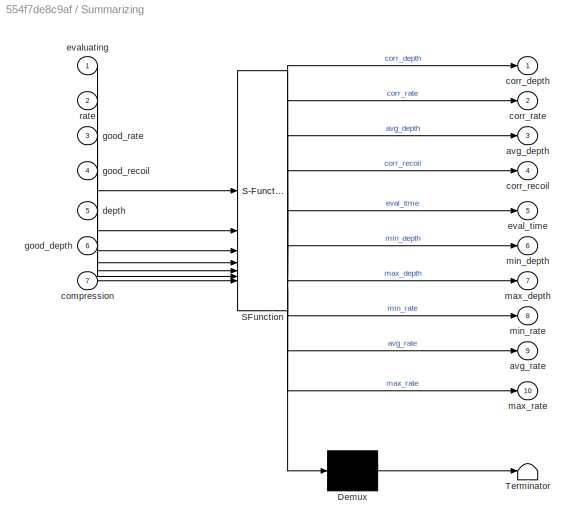
BLOCK [SubSystem] Summarizing
  ErrorFcn = Stateflow.Translate.translate
  PermitHierarchicalResolution = ExplicitOnly
  PortSchema = {"entries":[{"content":{"sides":[{"content":{"connectorIds":["In1","In2","In3","In4","In7","In5","In6"]},"type":"ConnectorPlacement.EquallySpacedRectSide","uuid":"70200d84-65f2-490a-b2a7-0c9edd68e63b"},{"content":{"connectorIds":["Out1","Out2","Out4","Out6","Out7","Out3","Out8","Out10","Out9","Out5"],"side":"RIGHT"},"type":"ConnectorPlacement.EquallySpacedRectSide","uuid":"53b8ba9f-0c6f-4cfc-a7c7-...<+340ch>
  SFBlockType = Chart
  TreatAsAtomicUnit = on
BLOCK [Demux] Summarizing/ Demux 
  Outputs = 1
BLOCK [S-Function] Summarizing/ SFunction 
  EnableBusSupport = on
  FunctionName = sf_sfun
  PortCounts = [7 11]
  SFcnIsStateOwnerBlock = off
  SFunctionDeploymentMode = off
  Tag = Stateflow S-Function 20
BLOCK [Terminator] Summarizing/ Terminator 
BLOCK [Outport] Summarizing/avg_depth
  Port = 3
BLOCK [Outport] Summarizing/avg_rate
  Port = 9
BLOCK [Inport] Summarizing/compression
  Port = 7
BLOCK [Outport] Summarizing/corr_depth
BLOCK [Outport] Summarizing/corr_rate
  Port = 2
BLOCK [Outport] Summarizing/corr_recoil
  Port = 4
BLOCK [Inport] Summarizing/depth
  Port = 5
BLOCK [Outport] Summarizing/eval_time
  Port = 5
BLOCK [Inport] Summarizing/evaluating
BLOCK [Inport] Summarizing/good_depth
  Port = 6
BLOCK [Inport] Summarizing/good_rate
  Port = 3
BLOCK [Inport] Summarizing/good_recoil
  Port = 4
BLOCK [Outport] Summarizing/max_depth
  Port = 7
BLOCK [Outport] Summarizing/max_rate
  Port = 10
BLOCK [Outport] Summarizing/min_depth
  Port = 6
BLOCK [Outport] Summarizing/min_rate
  Port = 8
BLOCK [Inport] Summarizing/rate
  Port = 2
BLOCK [Terminator] Terminator
BLOCK [Terminator] Terminator2
BLOCK [ToWorkspace] To Workspace
  Commented = on
  FixptAsFi = on
  MaxDataPoints = inf
  SampleTime = -1
  SaveFormat = Timeseries
  VariableName = analogRead_A4
BLOCK [Concatenate] Vector Concatenate
  NumInputs = 10
ANNOTATION (root): Make GPIO Writes for LEDs seperate subsystem that take 5x1 vector so we can switch between signal sources
ANNOTATION (root): Pin: D15
ANNOTATION (root): Should log signal to collect for off line testing
ANNOTATION (root): about 300msec write
ANNOTATION (root): will be == 0 to detect when low signal
ANNOTATION BLE Send: Blood pressure measurement
ANNOTATION BLE Send: Glucose Measurement
ANNOTATION BLE Send: Heart Rate Measurement
ANNOTATION Compression Detection/HR Encoding: Adding 1 for first bit
ANNOTATION Compression Detection/HR Encoding: most sig. byte will only be a '1 or 0' which is a 0x06 or 0x3F. So we may not need the int32 to accomplish this
ANNOTATION Direction : 100
ANNOTATION Direction : 50
ANNOTATION Direction : Direction: Takes distance, checks history of differences, based on thresholds assigns 3 exclusive bools: IsPos, IsZero or IsNeg
ANNOTATION Direction : Take samples to find moving average slope
ANNOTATION Direction : The longer the delay the more the noisy POT long range vals are reduced
ANNOTATION Direction : delay unit is step size (1ms or 5ms)
ANNOTATION Direction : need a lowpass filter
ANNOTATION Hardware Hiding: 1023
ANNOTATION Hardware Hiding: 5 *0.1924 = 5*1924/10000
ANNOTATION Hardware Hiding: 5v
ANNOTATION Hardware Hiding: 63.5mm of travel for 330deg
ANNOTATION Hardware Hiding: Convert to Voltage
ANNOTATION Hardware Hiding: Hardare Hiding: Takes ADC value, low pass filters, converts to displacement (mm)
ANNOTATION Hardware Hiding: Sample data and set baseline at 2sec
ANNOTATION MinMax: Latch
ANNOTATION MinMax: MinMax: Takes in Slope Bus and Distance Change For Max, contanstly looking for max, resets if slope is not IsPos or IsZero, Output should be sampled when this signal goes false. Currently sampled when slope IsNeg, before reset.
ANNOTATION MinMax: MinMax: Takes in Slope Bus and Distance Change For Min, constantly looking for min, resets if slope is not IsNeg or IsZero, Output should be sampled when this signal goes false. Currently sampled when slope IsNeg, before reset.
ANNOTATION MinMax: half compression signal
ANNOTATION Sped up 7seg Driver: Latch
ANNOTATION Sped up 7seg Driver: System should trigger a write when cpm changes && after the period time has passed
ANNOTATION Sped up 7seg Driver: false
ANNOTATION Sped up 7seg Driver: need 1 low
ANNOTATION Sped up 7seg Driver: no time delay on rising edge
ANNOTATION Sped up 7seg Driver: reset
ANNOTATION Sped up 7seg Driver: set
LINE 7 Seg Switch/Constant1:1 -> 7 Seg Switch/Switch2:3
LINE 7 Seg Switch/From2:1 -> 7 Seg Switch/Switch2:2
LINE 7 Seg Switch/In1:1 -> 7 Seg Switch/Switch2:1
LINE 7 Seg Switch/Switch2:1 -> 7 Seg Switch/Out1:1
LINE 7 Seg Switch:1 -> Sped up 7seg Driver:2
LINE 7seg GPIO/In1:1 -> 7seg GPIO/Digital Output2:1
LINE 7seg GPIO/In2:1 -> 7seg GPIO/Digital Output3:1
LINE Analog Input:1 -> Cast To Single2:1
LINE BLE Send/Cast To Double10:1 -> BLE Send/Shift Arithmetic7:1
LINE BLE Send/Cast To Double11:1 -> BLE Send/Shift Arithmetic8:1
LINE BLE Send/Cast To Double12:1 -> BLE Send/Shift Arithmetic9:1
LINE BLE Send/Cast To Double1:1 -> BLE Send/Sum of Elements:1
LINE BLE Send/Cast To Double2:1 -> BLE Send/Shift Arithmetic1:1
LINE BLE Send/Cast To Double3:1 -> BLE Send/Shift Arithmetic2:1
LINE BLE Send/Cast To Double4:1 -> BLE Send/Shift Arithmetic3:1
LINE BLE Send/Cast To Double5:1 -> BLE Send/Sum of Elements1:1
LINE BLE Send/Cast To Double6:1 -> BLE Send/Shift Arithmetic4:1
LINE BLE Send/Cast To Double7:1 -> BLE Send/Shift Arithmetic5:1
LINE BLE Send/Cast To Double8:1 -> BLE Send/Shift Arithmetic6:1
LINE BLE Send/Cast To Double9:1 -> BLE Send/Sum of Elements2:1
LINE BLE Send/Cast To Single1:1 -> BLE Send/BLE Send2:1
LINE BLE Send/Cast To Single2:1 -> BLE Send/BLE Send3:1
LINE BLE Send/Cast To Single3:1 -> BLE Send/BLE Send4:1
LINE BLE Send/Cast To Single4:1 -> BLE Send/BLE Send5:1
LINE BLE Send/Cast To Single5:1 -> BLE Send/BLE Send6:1
LINE BLE Send/Cast To Single6:1 -> BLE Send/BLE Send7:1
LINE BLE Send/Cast To Single7:1 -> BLE Send/BLE Send9:1
LINE BLE Send/Cast To Single8:1 -> BLE Send/BLE Send10:1
LINE BLE Send/Cast To Single9:1 -> BLE Send/BLE Send8:1
LINE BLE Send/Cast To Single:1 -> BLE Send/BLE Send1:1
LINE BLE Send/Constant1:1 -> BLE Send/Cast To Double12:1
LINE BLE Send/Constant:1 -> BLE Send/Cast To Double11:1
LINE BLE Send/Demux2:1 -> BLE Send/Cast To Double1:1
LINE BLE Send/Demux2:10 -> BLE Send/Cast To Double10:1
LINE BLE Send/Demux2:2 -> BLE Send/Cast To Double2:1
LINE BLE Send/Demux2:3 -> BLE Send/Cast To Double3:1
LINE BLE Send/Demux2:4 -> BLE Send/Cast To Double4:1
LINE BLE Send/Demux2:5 -> BLE Send/Cast To Double5:1
LINE BLE Send/Demux2:6 -> BLE Send/Cast To Double6:1
LINE BLE Send/Demux2:7 -> BLE Send/Cast To Double7:1
LINE BLE Send/Demux2:8 -> BLE Send/Cast To Double8:1
LINE BLE Send/Demux2:9 -> BLE Send/Cast To Double9:1
LINE BLE Send/In1:1 -> BLE Send/Demux2:1
LINE BLE Send/Shift Arithmetic1:1 -> BLE Send/Sum of Elements:2
LINE BLE Send/Shift Arithmetic2:1 -> BLE Send/Sum of Elements:3
LINE BLE Send/Shift Arithmetic3:1 -> BLE Send/Sum of Elements:4
LINE BLE Send/Shift Arithmetic4:1 -> BLE Send/Sum of Elements1:2
LINE BLE Send/Shift Arithmetic5:1 -> BLE Send/Sum of Elements1:3
LINE BLE Send/Shift Arithmetic6:1 -> BLE Send/Sum of Elements1:4
LINE BLE Send/Shift Arithmetic7:1 -> BLE Send/Sum of Elements2:2
LINE BLE Send/Shift Arithmetic8:1 -> BLE Send/Sum of Elements2:3
LINE BLE Send/Shift Arithmetic9:1 -> BLE Send/Sum of Elements2:4
LINE BLE Send/Sum of Elements1:1 -> BLE Send/BLE Send12:1
LINE BLE Send/Sum of Elements2:1 -> BLE Send/BLE Send13:1
LINE BLE Send/Sum of Elements:1 -> BLE Send/BLE Send11:1
LINE Bus Selector:1 -> Scope2:1
LINE Bus Selector:2 -> Terminator:1
LINE Bus Selector:3 -> Scope2:2
NET Cast To Single2:1 -> Hardware Hiding:1, Scope1:1
NET Check Recoil/Compare To Constant:1 -> Check Recoil/Goto3:1, Check Recoil/NOT:1, Check Recoil/Vector Concatenate:1
LINE Check Recoil/Constant:1 -> Check Recoil/Switch:3
LINE Check Recoil/Minimum Displacement:1 -> Check Recoil/Compare To Constant:1
LINE Check Recoil/NOT:1 -> Check Recoil/Vector Concatenate:2
LINE Check Recoil/Switch:1 -> Check Recoil/Good Recoil:1
LINE Check Recoil/Vector Concatenate:1 -> Check Recoil/Switch:1
LINE Check Recoil/recoil active:1 -> Check Recoil/Switch:2
LINE Check Recoil:1 -> Recoil GPIO:1
LINE Compare To Constant:1 -> Summarizing:6
LINE Compression Detection/Chart1:1 -> Compression Detection/force max to 253:1
LINE Compression Detection/Chart1:2 -> Compression Detection/recoil active:1
LINE Compression Detection/Chart1:3 -> Compression Detection/Terminator:1
LINE Compression Detection/Clock1:1 -> Compression Detection/Chart1:1
NET Compression Detection/Compression Detected:1 -> Compression Detection/Chart1:2, Compression Detection/Counter1:1
LINE Compression Detection/Constant2:1 -> Compression Detection/Counter1:2
LINE Compression Detection/Counter1:1 -> Compression Detection/Compression Counter:1
LINE Compression Detection/HR Encoding/7seg encoder/If Action Subsystem/Constant:1 -> Compression Detection/HR Encoding/7seg encoder/If Action Subsystem/Out1:1
LINE Compression Detection/HR Encoding/7seg encoder/If Action Subsystem1/Constant:1 -> Compression Detection/HR Encoding/7seg encoder/If Action Subsystem1/Out1:1
LINE Compression Detection/HR Encoding/7seg encoder/If Action Subsystem10/Constant:1 -> Compression Detection/HR Encoding/7seg encoder/If Action Subsystem10/Out1:1
LINE Compression Detection/HR Encoding/7seg encoder/If Action Subsystem10:1 -> Compression Detection/HR Encoding/7seg encoder/Merge:10
LINE Compression Detection/HR Encoding/7seg encoder/If Action Subsystem1:1 -> Compression Detection/HR Encoding/7seg encoder/Merge:2
LINE Compression Detection/HR Encoding/7seg encoder/If Action Subsystem2/Constant:1 -> Compression Detection/HR Encoding/7seg encoder/If Action Subsystem2/Out1:1
LINE Compression Detection/HR Encoding/7seg encoder/If Action Subsystem2:1 -> Compression Detection/HR Encoding/7seg encoder/Merge:3
LINE Compression Detection/HR Encoding/7seg encoder/If Action Subsystem3/Constant:1 -> Compression Detection/HR Encoding/7seg encoder/If Action Subsystem3/Out1:1
LINE Compression Detection/HR Encoding/7seg encoder/If Action Subsystem3:1 -> Compression Detection/HR Encoding/7seg encoder/Merge:4
LINE Compression Detection/HR Encoding/7seg encoder/If Action Subsystem4/Constant:1 -> Compression Detection/HR Encoding/7seg encoder/If Action Subsystem4/Out1:1
LINE Compression Detection/HR Encoding/7seg encoder/If Action Subsystem4:1 -> Compression Detection/HR Encoding/7seg encoder/Merge:5
LINE Compression Detection/HR Encoding/7seg encoder/If Action Subsystem5/Constant:1 -> Compression Detection/HR Encoding/7seg encoder/If Action Subsystem5/Out1:1
LINE Compression Detection/HR Encoding/7seg encoder/If Action Subsystem5:1 -> Compression Detection/HR Encoding/7seg encoder/Merge:6
LINE Compression Detection/HR Encoding/7seg encoder/If Action Subsystem6/Constant:1 -> Compression Detection/HR Encoding/7seg encoder/If Action Subsystem6/Out1:1
LINE Compression Detection/HR Encoding/7seg encoder/If Action Subsystem6:1 -> Compression Detection/HR Encoding/7seg encoder/Merge:7
LINE Compression Detection/HR Encoding/7seg encoder/If Action Subsystem7/Constant:1 -> Compression Detection/HR Encoding/7seg encoder/If Action Subsystem7/Out1:1
LINE Compression Detection/HR Encoding/7seg encoder/If Action Subsystem7:1 -> Compression Detection/HR Encoding/7seg encoder/Merge:8
LINE Compression Detection/HR Encoding/7seg encoder/If Action Subsystem8/Constant:1 -> Compression Detection/HR Encoding/7seg encoder/If Action Subsystem8/Out1:1
LINE Compression Detection/HR Encoding/7seg encoder/If Action Subsystem8:1 -> Compression Detection/HR Encoding/7seg encoder/Merge:9
LINE Compression Detection/HR Encoding/7seg encoder/If Action Subsystem9/Constant:1 -> Compression Detection/HR Encoding/7seg encoder/If Action Subsystem9/Out1:1
LINE Compression Detection/HR Encoding/7seg encoder/If Action Subsystem9:1 -> Compression Detection/HR Encoding/7seg encoder/Merge:11
LINE Compression Detection/HR Encoding/7seg encoder/If Action Subsystem:1 -> Compression Detection/HR Encoding/7seg encoder/Merge:1
LINE Compression Detection/HR Encoding/7seg encoder/In1:1 -> Compression Detection/HR Encoding/7seg encoder/Switch Case:1
LINE Compression Detection/HR Encoding/7seg encoder/Merge:1 -> Compression Detection/HR Encoding/7seg encoder/Out1:1
LINE Compression Detection/HR Encoding/7seg encoder/Switch Case:1 -> Compression Detection/HR Encoding/7seg encoder/If Action Subsystem:ifaction
LINE Compression Detection/HR Encoding/7seg encoder/Switch Case:10 -> Compression Detection/HR Encoding/7seg encoder/If Action Subsystem10:ifaction
LINE Compression Detection/HR Encoding/7seg encoder/Switch Case:11 -> Compression Detection/HR Encoding/7seg encoder/If Action Subsystem9:ifaction
LINE Compression Detection/HR Encoding/7seg encoder/Switch Case:2 -> Compression Detection/HR Encoding/7seg encoder/If Action Subsystem1:ifaction
LINE Compression Detection/HR Encoding/7seg encoder/Switch Case:3 -> Compression Detection/HR Encoding/7seg encoder/If Action Subsystem2:ifaction
LINE Compression Detection/HR Encoding/7seg encoder/Switch Case:4 -> Compression Detection/HR Encoding/7seg encoder/If Action Subsystem3:ifaction
LINE Compression Detection/HR Encoding/7seg encoder/Switch Case:5 -> Compression Detection/HR Encoding/7seg encoder/If Action Subsystem4:ifaction
LINE Compression Detection/HR Encoding/7seg encoder/Switch Case:6 -> Compression Detection/HR Encoding/7seg encoder/If Action Subsystem5:ifaction
LINE Compression Detection/HR Encoding/7seg encoder/Switch Case:7 -> Compression Detection/HR Encoding/7seg encoder/If Action Subsystem6:ifaction
LINE Compression Detection/HR Encoding/7seg encoder/Switch Case:8 -> Compression Detection/HR Encoding/7seg encoder/If Action Subsystem7:ifaction
LINE Compression Detection/HR Encoding/7seg encoder/Switch Case:9 -> Compression Detection/HR Encoding/7seg encoder/If Action Subsystem8:ifaction
LINE Compression Detection/HR Encoding/7seg encoder1/If Action Subsystem/Constant:1 -> Compression Detection/HR Encoding/7seg encoder1/If Action Subsystem/Out1:1
LINE Compression Detection/HR Encoding/7seg encoder1/If Action Subsystem1/Constant:1 -> Compression Detection/HR Encoding/7seg encoder1/If Action Subsystem1/Out1:1
LINE Compression Detection/HR Encoding/7seg encoder1/If Action Subsystem10/Constant:1 -> Compression Detection/HR Encoding/7seg encoder1/If Action Subsystem10/Out1:1
LINE Compression Detection/HR Encoding/7seg encoder1/If Action Subsystem10:1 -> Compression Detection/HR Encoding/7seg encoder1/Merge:10
LINE Compression Detection/HR Encoding/7seg encoder1/If Action Subsystem1:1 -> Compression Detection/HR Encoding/7seg encoder1/Merge:2
LINE Compression Detection/HR Encoding/7seg encoder1/If Action Subsystem2/Constant:1 -> Compression Detection/HR Encoding/7seg encoder1/If Action Subsystem2/Out1:1
LINE Compression Detection/HR Encoding/7seg encoder1/If Action Subsystem2:1 -> Compression Detection/HR Encoding/7seg encoder1/Merge:3
LINE Compression Detection/HR Encoding/7seg encoder1/If Action Subsystem3/Constant:1 -> Compression Detection/HR Encoding/7seg encoder1/If Action Subsystem3/Out1:1
LINE Compression Detection/HR Encoding/7seg encoder1/If Action Subsystem3:1 -> Compression Detection/HR Encoding/7seg encoder1/Merge:4
LINE Compression Detection/HR Encoding/7seg encoder1/If Action Subsystem4/Constant:1 -> Compression Detection/HR Encoding/7seg encoder1/If Action Subsystem4/Out1:1
LINE Compression Detection/HR Encoding/7seg encoder1/If Action Subsystem4:1 -> Compression Detection/HR Encoding/7seg encoder1/Merge:5
LINE Compression Detection/HR Encoding/7seg encoder1/If Action Subsystem5/Constant:1 -> Compression Detection/HR Encoding/7seg encoder1/If Action Subsystem5/Out1:1
LINE Compression Detection/HR Encoding/7seg encoder1/If Action Subsystem5:1 -> Compression Detection/HR Encoding/7seg encoder1/Merge:6
LINE Compression Detection/HR Encoding/7seg encoder1/If Action Subsystem6/Constant:1 -> Compression Detection/HR Encoding/7seg encoder1/If Action Subsystem6/Out1:1
LINE Compression Detection/HR Encoding/7seg encoder1/If Action Subsystem6:1 -> Compression Detection/HR Encoding/7seg encoder1/Merge:7
LINE Compression Detection/HR Encoding/7seg encoder1/If Action Subsystem7/Constant:1 -> Compression Detection/HR Encoding/7seg encoder1/If Action Subsystem7/Out1:1
LINE Compression Detection/HR Encoding/7seg encoder1/If Action Subsystem7:1 -> Compression Detection/HR Encoding/7seg encoder1/Merge:8
LINE Compression Detection/HR Encoding/7seg encoder1/If Action Subsystem8/Constant:1 -> Compression Detection/HR Encoding/7seg encoder1/If Action Subsystem8/Out1:1
LINE Compression Detection/HR Encoding/7seg encoder1/If Action Subsystem8:1 -> Compression Detection/HR Encoding/7seg encoder1/Merge:9
LINE Compression Detection/HR Encoding/7seg encoder1/If Action Subsystem9/Constant:1 -> Compression Detection/HR Encoding/7seg encoder1/If Action Subsystem9/Out1:1
LINE Compression Detection/HR Encoding/7seg encoder1/If Action Subsystem9:1 -> Compression Detection/HR Encoding/7seg encoder1/Merge:11
LINE Compression Detection/HR Encoding/7seg encoder1/If Action Subsystem:1 -> Compression Detection/HR Encoding/7seg encoder1/Merge:1
LINE Compression Detection/HR Encoding/7seg encoder1/In1:1 -> Compression Detection/HR Encoding/7seg encoder1/Switch Case:1
LINE Compression Detection/HR Encoding/7seg encoder1/Merge:1 -> Compression Detection/HR Encoding/7seg encoder1/Out1:1
LINE Compression Detection/HR Encoding/7seg encoder1/Switch Case:1 -> Compression Detection/HR Encoding/7seg encoder1/If Action Subsystem:ifaction
LINE Compression Detection/HR Encoding/7seg encoder1/Switch Case:10 -> Compression Detection/HR Encoding/7seg encoder1/If Action Subsystem10:ifaction
LINE Compression Detection/HR Encoding/7seg encoder1/Switch Case:11 -> Compression Detection/HR Encoding/7seg encoder1/If Action Subsystem9:ifaction
LINE Compression Detection/HR Encoding/7seg encoder1/Switch Case:2 -> Compression Detection/HR Encoding/7seg encoder1/If Action Subsystem1:ifaction
LINE Compression Detection/HR Encoding/7seg encoder1/Switch Case:3 -> Compression Detection/HR Encoding/7seg encoder1/If Action Subsystem2:ifaction
LINE Compression Detection/HR Encoding/7seg encoder1/Switch Case:4 -> Compression Detection/HR Encoding/7seg encoder1/If Action Subsystem3:ifaction
LINE Compression Detection/HR Encoding/7seg encoder1/Switch Case:5 -> Compression Detection/HR Encoding/7seg encoder1/If Action Subsystem4:ifaction
LINE Compression Detection/HR Encoding/7seg encoder1/Switch Case:6 -> Compression Detection/HR Encoding/7seg encoder1/If Action Subsystem5:ifaction
LINE Compression Detection/HR Encoding/7seg encoder1/Switch Case:7 -> Compression Detection/HR Encoding/7seg encoder1/If Action Subsystem6:ifaction
LINE Compression Detection/HR Encoding/7seg encoder1/Switch Case:8 -> Compression Detection/HR Encoding/7seg encoder1/If Action Subsystem7:ifaction
LINE Compression Detection/HR Encoding/7seg encoder1/Switch Case:9 -> Compression Detection/HR Encoding/7seg encoder1/If Action Subsystem8:ifaction
LINE Compression Detection/HR Encoding/7seg encoder1:1 -> Compression Detection/HR Encoding/Cast To Double1:1
LINE Compression Detection/HR Encoding/7seg encoder2/If Action Subsystem/Constant:1 -> Compression Detection/HR Encoding/7seg encoder2/If Action Subsystem/Out1:1
LINE Compression Detection/HR Encoding/7seg encoder2/If Action Subsystem1/Constant:1 -> Compression Detection/HR Encoding/7seg encoder2/If Action Subsystem1/Out1:1
LINE Compression Detection/HR Encoding/7seg encoder2/If Action Subsystem10/Constant:1 -> Compression Detection/HR Encoding/7seg encoder2/If Action Subsystem10/Out1:1
LINE Compression Detection/HR Encoding/7seg encoder2/If Action Subsystem10:1 -> Compression Detection/HR Encoding/7seg encoder2/Merge:10
LINE Compression Detection/HR Encoding/7seg encoder2/If Action Subsystem1:1 -> Compression Detection/HR Encoding/7seg encoder2/Merge:2
LINE Compression Detection/HR Encoding/7seg encoder2/If Action Subsystem2/Constant:1 -> Compression Detection/HR Encoding/7seg encoder2/If Action Subsystem2/Out1:1
LINE Compression Detection/HR Encoding/7seg encoder2/If Action Subsystem2:1 -> Compression Detection/HR Encoding/7seg encoder2/Merge:3
LINE Compression Detection/HR Encoding/7seg encoder2/If Action Subsystem3/Constant:1 -> Compression Detection/HR Encoding/7seg encoder2/If Action Subsystem3/Out1:1
LINE Compression Detection/HR Encoding/7seg encoder2/If Action Subsystem3:1 -> Compression Detection/HR Encoding/7seg encoder2/Merge:4
LINE Compression Detection/HR Encoding/7seg encoder2/If Action Subsystem4/Constant:1 -> Compression Detection/HR Encoding/7seg encoder2/If Action Subsystem4/Out1:1
LINE Compression Detection/HR Encoding/7seg encoder2/If Action Subsystem4:1 -> Compression Detection/HR Encoding/7seg encoder2/Merge:5
LINE Compression Detection/HR Encoding/7seg encoder2/If Action Subsystem5/Constant:1 -> Compression Detection/HR Encoding/7seg encoder2/If Action Subsystem5/Out1:1
LINE Compression Detection/HR Encoding/7seg encoder2/If Action Subsystem5:1 -> Compression Detection/HR Encoding/7seg encoder2/Merge:6
LINE Compression Detection/HR Encoding/7seg encoder2/If Action Subsystem6/Constant:1 -> Compression Detection/HR Encoding/7seg encoder2/If Action Subsystem6/Out1:1
LINE Compression Detection/HR Encoding/7seg encoder2/If Action Subsystem6:1 -> Compression Detection/HR Encoding/7seg encoder2/Merge:7
LINE Compression Detection/HR Encoding/7seg encoder2/If Action Subsystem7/Constant:1 -> Compression Detection/HR Encoding/7seg encoder2/If Action Subsystem7/Out1:1
LINE Compression Detection/HR Encoding/7seg encoder2/If Action Subsystem7:1 -> Compression Detection/HR Encoding/7seg encoder2/Merge:8
LINE Compression Detection/HR Encoding/7seg encoder2/If Action Subsystem8/Constant:1 -> Compression Detection/HR Encoding/7seg encoder2/If Action Subsystem8/Out1:1
LINE Compression Detection/HR Encoding/7seg encoder2/If Action Subsystem8:1 -> Compression Detection/HR Encoding/7seg encoder2/Merge:9
LINE Compression Detection/HR Encoding/7seg encoder2/If Action Subsystem9/Constant:1 -> Compression Detection/HR Encoding/7seg encoder2/If Action Subsystem9/Out1:1
LINE Compression Detection/HR Encoding/7seg encoder2/If Action Subsystem9:1 -> Compression Detection/HR Encoding/7seg encoder2/Merge:11
LINE Compression Detection/HR Encoding/7seg encoder2/If Action Subsystem:1 -> Compression Detection/HR Encoding/7seg encoder2/Merge:1
LINE Compression Detection/HR Encoding/7seg encoder2/In1:1 -> Compression Detection/HR Encoding/7seg encoder2/Switch Case:1
LINE Compression Detection/HR Encoding/7seg encoder2/Merge:1 -> Compression Detection/HR Encoding/7seg encoder2/Out1:1
LINE Compression Detection/HR Encoding/7seg encoder2/Switch Case:1 -> Compression Detection/HR Encoding/7seg encoder2/If Action Subsystem:ifaction
LINE Compression Detection/HR Encoding/7seg encoder2/Switch Case:10 -> Compression Detection/HR Encoding/7seg encoder2/If Action Subsystem10:ifaction
LINE Compression Detection/HR Encoding/7seg encoder2/Switch Case:11 -> Compression Detection/HR Encoding/7seg encoder2/If Action Subsystem9:ifaction
LINE Compression Detection/HR Encoding/7seg encoder2/Switch Case:2 -> Compression Detection/HR Encoding/7seg encoder2/If Action Subsystem1:ifaction
LINE Compression Detection/HR Encoding/7seg encoder2/Switch Case:3 -> Compression Detection/HR Encoding/7seg encoder2/If Action Subsystem2:ifaction
LINE Compression Detection/HR Encoding/7seg encoder2/Switch Case:4 -> Compression Detection/HR Encoding/7seg encoder2/If Action Subsystem3:ifaction
LINE Compression Detection/HR Encoding/7seg encoder2/Switch Case:5 -> Compression Detection/HR Encoding/7seg encoder2/If Action Subsystem4:ifaction
LINE Compression Detection/HR Encoding/7seg encoder2/Switch Case:6 -> Compression Detection/HR Encoding/7seg encoder2/If Action Subsystem5:ifaction
LINE Compression Detection/HR Encoding/7seg encoder2/Switch Case:7 -> Compression Detection/HR Encoding/7seg encoder2/If Action Subsystem6:ifaction
LINE Compression Detection/HR Encoding/7seg encoder2/Switch Case:8 -> Compression Detection/HR Encoding/7seg encoder2/If Action Subsystem7:ifaction
LINE Compression Detection/HR Encoding/7seg encoder2/Switch Case:9 -> Compression Detection/HR Encoding/7seg encoder2/If Action Subsystem8:ifaction
LINE Compression Detection/HR Encoding/7seg encoder2:1 -> Compression Detection/HR Encoding/Cast To Double:1
LINE Compression Detection/HR Encoding/7seg encoder:1 -> Compression Detection/HR Encoding/Cast To Double2:1
LINE Compression Detection/HR Encoding/Add1:1 -> Compression Detection/HR Encoding/Terminator:1
NET Compression Detection/HR Encoding/Add:1 -> Compression Detection/HR Encoding/ :1, Compression Detection/HR Encoding/Display1:1
LINE Compression Detection/HR Encoding/Cast To Double1:1 -> Compression Detection/HR Encoding/Shift Arithmetic1:1
LINE Compression Detection/HR Encoding/Cast To Double2:1 -> Compression Detection/HR Encoding/Shift Arithmetic2:1
LINE Compression Detection/HR Encoding/Cast To Double:1 -> Compression Detection/HR Encoding/Shift Arithmetic:1
LINE Compression Detection/HR Encoding/Constant1:1 -> Compression Detection/HR Encoding/Mod:2
LINE Compression Detection/HR Encoding/Constant2:1 -> Compression Detection/HR Encoding/Mod1:2
LINE Compression Detection/HR Encoding/Constant:1 -> Compression Detection/HR Encoding/Add1:2
NET Compression Detection/HR Encoding/Divide by Constant and Round1:1 -> Compression Detection/HR Encoding/7seg encoder1:1, Compression Detection/HR Encoding/Vector Concatenate:2
NET Compression Detection/HR Encoding/Divide by Constant and Round2:1 -> Compression Detection/HR Encoding/7seg encoder:1, Compression Detection/HR Encoding/Vector Concatenate:3
NET Compression Detection/HR Encoding/Divide by Constant and Round:1 -> Compression Detection/HR Encoding/7seg encoder2:1, Compression Detection/HR Encoding/Vector Concatenate:1
NET Compression Detection/HR Encoding/Mod1:1 -> Compression Detection/HR Encoding/Divide by Constant and Round2:1, Compression Detection/HR Encoding/Subtract1:2
NET Compression Detection/HR Encoding/Mod:1 -> Compression Detection/HR Encoding/Mod1:1, Compression Detection/HR Encoding/Subtract1:1, Compression Detection/HR Encoding/Subtract:2
LINE Compression Detection/HR Encoding/Shift Arithmetic1:1 -> Compression Detection/HR Encoding/Add:2
LINE Compression Detection/HR Encoding/Shift Arithmetic2:1 -> Compression Detection/HR Encoding/Add:3
LINE Compression Detection/HR Encoding/Shift Arithmetic3:1 -> Compression Detection/HR Encoding/Add1:1
LINE Compression Detection/HR Encoding/Shift Arithmetic:1 -> Compression Detection/HR Encoding/Add:1
LINE Compression Detection/HR Encoding/Subtract1:1 -> Compression Detection/HR Encoding/Divide by Constant and Round1:1
LINE Compression Detection/HR Encoding/Subtract:1 -> Compression Detection/HR Encoding/Divide by Constant and Round:1
LINE Compression Detection/HR Encoding/Vector Concatenate:1 -> Compression Detection/HR Encoding/Display2:1
LINE Compression Detection/HR Encoding/old encoder3/If Action Subsystem/Constant:1 -> Compression Detection/HR Encoding/old encoder3/If Action Subsystem/Out1:1
LINE Compression Detection/HR Encoding/old encoder3/If Action Subsystem1/Constant:1 -> Compression Detection/HR Encoding/old encoder3/If Action Subsystem1/Out1:1
LINE Compression Detection/HR Encoding/old encoder3/If Action Subsystem10/Constant:1 -> Compression Detection/HR Encoding/old encoder3/If Action Subsystem10/Out1:1
LINE Compression Detection/HR Encoding/old encoder3/If Action Subsystem10:1 -> Compression Detection/HR Encoding/old encoder3/Merge:10
LINE Compression Detection/HR Encoding/old encoder3/If Action Subsystem1:1 -> Compression Detection/HR Encoding/old encoder3/Merge:2
LINE Compression Detection/HR Encoding/old encoder3/If Action Subsystem2/Constant:1 -> Compression Detection/HR Encoding/old encoder3/If Action Subsystem2/Out1:1
LINE Compression Detection/HR Encoding/old encoder3/If Action Subsystem2:1 -> Compression Detection/HR Encoding/old encoder3/Merge:3
LINE Compression Detection/HR Encoding/old encoder3/If Action Subsystem3/Constant:1 -> Compression Detection/HR Encoding/old encoder3/If Action Subsystem3/Out1:1
LINE Compression Detection/HR Encoding/old encoder3/If Action Subsystem3:1 -> Compression Detection/HR Encoding/old encoder3/Merge:4
LINE Compression Detection/HR Encoding/old encoder3/If Action Subsystem4/Constant:1 -> Compression Detection/HR Encoding/old encoder3/If Action Subsystem4/Out1:1
LINE Compression Detection/HR Encoding/old encoder3/If Action Subsystem4:1 -> Compression Detection/HR Encoding/old encoder3/Merge:5
LINE Compression Detection/HR Encoding/old encoder3/If Action Subsystem5/Constant:1 -> Compression Detection/HR Encoding/old encoder3/If Action Subsystem5/Out1:1
LINE Compression Detection/HR Encoding/old encoder3/If Action Subsystem5:1 -> Compression Detection/HR Encoding/old encoder3/Merge:6
LINE Compression Detection/HR Encoding/old encoder3/If Action Subsystem6/Constant:1 -> Compression Detection/HR Encoding/old encoder3/If Action Subsystem6/Out1:1
LINE Compression Detection/HR Encoding/old encoder3/If Action Subsystem6:1 -> Compression Detection/HR Encoding/old encoder3/Merge:7
LINE Compression Detection/HR Encoding/old encoder3/If Action Subsystem7/Constant:1 -> Compression Detection/HR Encoding/old encoder3/If Action Subsystem7/Out1:1
LINE Compression Detection/HR Encoding/old encoder3/If Action Subsystem7:1 -> Compression Detection/HR Encoding/old encoder3/Merge:8
LINE Compression Detection/HR Encoding/old encoder3/If Action Subsystem8/Constant:1 -> Compression Detection/HR Encoding/old encoder3/If Action Subsystem8/Out1:1
LINE Compression Detection/HR Encoding/old encoder3/If Action Subsystem8:1 -> Compression Detection/HR Encoding/old encoder3/Merge:9
LINE Compression Detection/HR Encoding/old encoder3/If Action Subsystem:1 -> Compression Detection/HR Encoding/old encoder3/Merge:1
LINE Compression Detection/HR Encoding/old encoder3/In1:1 -> Compression Detection/HR Encoding/old encoder3/Switch Case:1
LINE Compression Detection/HR Encoding/old encoder3/Merge:1 -> Compression Detection/HR Encoding/old encoder3/Out1:1
LINE Compression Detection/HR Encoding/old encoder3/Switch Case:1 -> Compression Detection/HR Encoding/old encoder3/If Action Subsystem:ifaction
LINE Compression Detection/HR Encoding/old encoder3/Switch Case:10 -> Compression Detection/HR Encoding/old encoder3/If Action Subsystem10:ifaction
LINE Compression Detection/HR Encoding/old encoder3/Switch Case:2 -> Compression Detection/HR Encoding/old encoder3/If Action Subsystem1:ifaction
LINE Compression Detection/HR Encoding/old encoder3/Switch Case:3 -> Compression Detection/HR Encoding/old encoder3/If Action Subsystem2:ifaction
LINE Compression Detection/HR Encoding/old encoder3/Switch Case:4 -> Compression Detection/HR Encoding/old encoder3/If Action Subsystem3:ifaction
LINE Compression Detection/HR Encoding/old encoder3/Switch Case:5 -> Compression Detection/HR Encoding/old encoder3/If Action Subsystem4:ifaction
LINE Compression Detection/HR Encoding/old encoder3/Switch Case:6 -> Compression Detection/HR Encoding/old encoder3/If Action Subsystem5:ifaction
LINE Compression Detection/HR Encoding/old encoder3/Switch Case:7 -> Compression Detection/HR Encoding/old encoder3/If Action Subsystem6:ifaction
LINE Compression Detection/HR Encoding/old encoder3/Switch Case:8 -> Compression Detection/HR Encoding/old encoder3/If Action Subsystem7:ifaction
LINE Compression Detection/HR Encoding/old encoder3/Switch Case:9 -> Compression Detection/HR Encoding/old encoder3/If Action Subsystem8:ifaction
NET Compression Detection/HR Encoding/rate:1 -> Compression Detection/HR Encoding/Mod:1, Compression Detection/HR Encoding/Subtract:1
LINE Compression Detection/HR Encoding:1 -> Compression Detection/encoded rate:1
LINE Compression Detection/Max Displacement:1 -> Compression Detection/Subtract3:1
LINE Compression Detection/Minimum Displacement:1 -> Compression Detection/Subtract3:2
LINE Compression Detection/Subtract3:1 -> Compression Detection/Depth:1
LINE Compression Detection/force max to 253/Constant:1 -> Compression Detection/force max to 253/If Action Subsystem:1
LINE Compression Detection/force max to 253/If Action Subsystem/In1:1 -> Compression Detection/force max to 253/If Action Subsystem/Out1:1
LINE Compression Detection/force max to 253/If Action Subsystem1/In1:1 -> Compression Detection/force max to 253/If Action Subsystem1/Out1:1
LINE Compression Detection/force max to 253/If Action Subsystem1:1 -> Compression Detection/force max to 253/Merge:2
LINE Compression Detection/force max to 253/If Action Subsystem:1 -> Compression Detection/force max to 253/Merge:1
LINE Compression Detection/force max to 253/If:1 -> Compression Detection/force max to 253/If Action Subsystem:ifaction
LINE Compression Detection/force max to 253/If:2 -> Compression Detection/force max to 253/If Action Subsystem1:ifaction
NET Compression Detection/force max to 253/In1:1 -> Compression Detection/force max to 253/If Action Subsystem1:1, Compression Detection/force max to 253/If:1
LINE Compression Detection/force max to 253/Merge:1 -> Compression Detection/force max to 253/Out1:1
NET Compression Detection/force max to 253:1 -> Compression Detection/HR Encoding:1, Compression Detection/rate:1
NET Compression Detection:1 -> Goto5:1, Sped up 7seg Driver:1
LINE Compression Detection:2 -> 7 Seg Switch:1
LINE Compression Detection:3 -> Terminator2:1
LINE Compression Detection:4 -> Goto4:1
LINE Compression Detection:5 -> Check Recoil:1
LINE Depth GPIO /Constant2:1 -> Depth GPIO /Switch:3
LINE Depth GPIO /Demux:1 -> Depth GPIO /Digital Output4:1
LINE Depth GPIO /Demux:2 -> Depth GPIO /Digital Output5:1
LINE Depth GPIO /Demux:3 -> Depth GPIO /Digital Output6:1
LINE Depth GPIO /Demux:4 -> Depth GPIO /Digital Output7:1
LINE Depth GPIO /From:1 -> Depth GPIO /Switch:2
LINE Depth GPIO /In1:1 -> Depth GPIO /Switch:1
LINE Depth GPIO /Switch:1 -> Depth GPIO /Demux:1
LINE Depth ctrl/Compare To Constant1:1 -> Depth ctrl/Vector Concatenate:1
LINE Depth ctrl/Compare To Constant2:1 -> Depth ctrl/Vector Concatenate:2
LINE Depth ctrl/Compare To Constant3:1 -> Depth ctrl/Vector Concatenate:3
LINE Depth ctrl/Compare To Constant4:1 -> Depth ctrl/Vector Concatenate:4
LINE Depth ctrl/Vector Concatenate:1 -> Depth ctrl/LED Depth:1
NET Depth ctrl/distance:1 -> Depth ctrl/Compare To Constant1:1, Depth ctrl/Compare To Constant2:1, Depth ctrl/Compare To Constant3:1, Depth ctrl/Compare To Constant4:1
LINE Depth ctrl:1 -> Depth GPIO :1
LINE Digital Input:1 -> IsNonZero:1
LINE Direction /30 Diff:1 -> Direction /Tapped Delay:1
LINE Direction /5to30 Diff:1 -> Direction /Sign5:1
NET Direction /AND1:1 -> Direction /Bus Creator:3, Direction /Zero:2
NET Direction /AND:1 -> Direction /Bus Creator:1, Direction /Zero:1
NET Direction /Add:1 -> Direction /Negative:1, Direction /Positive:1, Direction /Scope:1
LINE Direction /Bus Creator:1 -> Direction /Slope Bus:1
NET Direction /Compression Sensitivity:1 -> Direction /Long range motion down:1, Direction /Long range motion up:1, Direction /Scope:2
NET Direction /Delay1:1 -> Direction /Second Diff:2, Direction /Third Diff:1
NET Direction /Delay2:1 -> Direction /Fourth Diff:1, Direction /Third Diff:2
NET Direction /Delay3:1 -> Direction /Fifth Diff:1, Direction /Fourth Diff:2
NET Direction /Delay4:1 -> Direction /5to30 Diff:1, Direction /Fifth Diff:2
NET Direction /Delay5:1 -> Direction /30 Diff:2, Direction /5to30 Diff:2
NET Direction /Delay:1 -> Direction /First Diff:2, Direction /Second Diff:1
NET Direction /Distance (mm):1 -> Direction /30 Diff:1, Direction /Delay1:1, Direction /Delay2:1, Direction /Delay3:1, Direction /Delay4:1, Direction /Delay5:1, Direction /Delay:1, Direction /First Diff:1
LINE Direction /Fifth Diff:1 -> Direction /Sign4:1
LINE Direction /First Diff:1 -> Direction /Sign:1
LINE Direction /Fourth Diff:1 -> Direction /Sign3:1
LINE Direction /Gain1:1 -> Direction /Add:2
LINE Direction /Gain:1 -> Direction /Add:1
LINE Direction /Long range motion down:1 -> Direction /AND1:2
LINE Direction /Long range motion up:1 -> Direction /AND:2
LINE Direction /Mean:1 -> Direction /Compression Sensitivity:1
LINE Direction /Negative:1 -> Direction /AND1:1
LINE Direction /Positive:1 -> Direction /AND:1
LINE Direction /Second Diff:1 -> Direction /Sign1:1
LINE Direction /Sign1:1 -> Direction /Gain1:1
LINE Direction /Sign2:1 -> Direction /Add:3
LINE Direction /Sign3:1 -> Direction /Add:4
LINE Direction /Sign4:1 -> Direction /Add:5
LINE Direction /Sign5:1 -> Direction /Add:6
LINE Direction /Sign:1 -> Direction /Gain:1
LINE Direction /Tapped Delay:1 -> Direction /Mean:1
LINE Direction /Third Diff:1 -> Direction /Sign2:1
LINE Direction /Zero:1 -> Direction /Bus Creator:2
NET Direction :1 -> Bus Selector:1, MinMax:1
NET From1:1 -> Compare To Constant:1, Summarizing:5
NET From2:1 -> Subsystem1:1, Summarizing:2
LINE From3:1 -> Summarizing:7
LINE From:1 -> Summarizing:4
LINE Gain:1 -> Scope10:1
LINE Hardware Hiding/Constant1:1 -> Hardware Hiding/Divide:2
LINE Hardware Hiding/Constant:1 -> Hardware Hiding/Product:2
LINE Hardware Hiding/Divide:1 -> Hardware Hiding/Product:1
LINE Hardware Hiding/Gear Down:1 -> Hardware Hiding/Radius (mm):1
LINE Hardware Hiding/In1:1 -> Hardware Hiding/Tapped Delay:1
LINE Hardware Hiding/Mean1:1 -> Hardware Hiding/timer:1
LINE Hardware Hiding/Mean:1 -> Hardware Hiding/Divide:1
NET Hardware Hiding/Product:1 -> Hardware Hiding/Subtract:2, Hardware Hiding/Switch:3, Hardware Hiding/Tapped Delay1:1
LINE Hardware Hiding/Radius (mm):1 -> Hardware Hiding/force min to zero:1
LINE Hardware Hiding/Subtract:1 -> Hardware Hiding/rad  per volt:1
LINE Hardware Hiding/Switch:1 -> Hardware Hiding/Subtract:1
LINE Hardware Hiding/Tapped Delay1:1 -> Hardware Hiding/Mean1:1
LINE Hardware Hiding/Tapped Delay:1 -> Hardware Hiding/Mean:1
LINE Hardware Hiding/force min to zero/Constant:1 -> Hardware Hiding/force min to zero/If Action Subsystem:1
LINE Hardware Hiding/force min to zero/If Action Subsystem/In1:1 -> Hardware Hiding/force min to zero/If Action Subsystem/Out1:1
LINE Hardware Hiding/force min to zero/If Action Subsystem1/In1:1 -> Hardware Hiding/force min to zero/If Action Subsystem1/Out1:1
LINE Hardware Hiding/force min to zero/If Action Subsystem1:1 -> Hardware Hiding/force min to zero/Merge:2
LINE Hardware Hiding/force min to zero/If Action Subsystem:1 -> Hardware Hiding/force min to zero/Merge:1
LINE Hardware Hiding/force min to zero/If:1 -> Hardware Hiding/force min to zero/If Action Subsystem:ifaction
LINE Hardware Hiding/force min to zero/If:2 -> Hardware Hiding/force min to zero/If Action Subsystem1:ifaction
NET Hardware Hiding/force min to zero/In1:1 -> Hardware Hiding/force min to zero/If Action Subsystem1:1, Hardware Hiding/force min to zero/If:1
LINE Hardware Hiding/force min to zero/Merge:1 -> Hardware Hiding/force min to zero/Out1:1
LINE Hardware Hiding/force min to zero:1 -> Hardware Hiding/Distance (mm):1
LINE Hardware Hiding/rad  per volt:1 -> Hardware Hiding/Gear Down:1
LINE Hardware Hiding/timer:1 -> Hardware Hiding/Switch:1
LINE Hardware Hiding/timer:2 -> Hardware Hiding/Switch:2
NET Hardware Hiding:1 -> Depth ctrl:1, Direction :1, MinMax:2, Scope10:2, Scope:1
NET IsNonZero:1 -> Display2:1, Mode:1
NET MinMax/AND1:1 -> MinMax/Terminator:1, MinMax/sample and hold:2
NET MinMax/AND:1 -> MinMax/Compression Detected:1, MinMax/sample and hold1:2
NET MinMax/Bus Selector:1 -> MinMax/Delay8:1, MinMax/Logical Operator3:1, MinMax/Logical Operator4:1, MinMax/OR:1
NET MinMax/Bus Selector:2 -> MinMax/OR1:1, MinMax/OR:2
NET MinMax/Bus Selector:3 -> MinMax/Delay4:1, MinMax/Logical Operator7:1, MinMax/Logical Operator:1, MinMax/OR1:2
LINE MinMax/Delay1:1 -> MinMax/Logical Operator6:2
LINE MinMax/Delay2:1 -> MinMax/Min (BDC):2
LINE MinMax/Delay3:1 -> MinMax/NOT1:1
LINE MinMax/Delay4:1 -> MinMax/Logical Operator6:1
LINE MinMax/Delay6:1 -> MinMax/NOT3:1
LINE MinMax/Delay7:1 -> MinMax/Logical Operator2:2
LINE MinMax/Delay8:1 -> MinMax/Logical Operator2:1
LINE MinMax/Delay:1 -> MinMax/Max (BDC):2
NET MinMax/Distance (mm):1 -> MinMax/Max (BDC):1, MinMax/Min (BDC):1
NET MinMax/Logical Operator1:1 -> MinMax/Delay7:1, MinMax/NOT4:1
LINE MinMax/Logical Operator2:1 -> MinMax/Logical Operator1:2
NET MinMax/Logical Operator3:1 -> MinMax/AND:1, MinMax/Delay6:1
LINE MinMax/Logical Operator4:1 -> MinMax/Logical Operator5:1
NET MinMax/Logical Operator5:1 -> MinMax/Delay1:1, MinMax/NOT5:1
LINE MinMax/Logical Operator6:1 -> MinMax/Logical Operator5:2
NET MinMax/Logical Operator7:1 -> MinMax/AND1:1, MinMax/Delay3:1
LINE MinMax/Logical Operator:1 -> MinMax/Logical Operator1:1
LINE MinMax/Max (BDC):1 -> MinMax/sample and hold:1
LINE MinMax/Min (BDC):1 -> MinMax/sample and hold1:1
LINE MinMax/NOT1:1 -> MinMax/AND1:2
LINE MinMax/NOT2:1 -> MinMax/Delay2:1
LINE MinMax/NOT3:1 -> MinMax/AND:2
LINE MinMax/NOT4:1 -> MinMax/Logical Operator3:2
LINE MinMax/NOT5:1 -> MinMax/Logical Operator7:2
LINE MinMax/NOT:1 -> MinMax/Delay:1
LINE MinMax/OR1:1 -> MinMax/NOT2:1
LINE MinMax/OR:1 -> MinMax/NOT:1
LINE MinMax/Slope Bus:1 -> MinMax/Bus Selector:1
LINE MinMax/force min to zero/Constant:1 -> MinMax/force min to zero/If Action Subsystem:1
LINE MinMax/force min to zero/If Action Subsystem/In1:1 -> MinMax/force min to zero/If Action Subsystem/Out1:1
LINE MinMax/force min to zero/If Action Subsystem1/In1:1 -> MinMax/force min to zero/If Action Subsystem1/Out1:1
LINE MinMax/force min to zero/If Action Subsystem1:1 -> MinMax/force min to zero/Merge:2
LINE MinMax/force min to zero/If Action Subsystem:1 -> MinMax/force min to zero/Merge:1
LINE MinMax/force min to zero/If:1 -> MinMax/force min to zero/If Action Subsystem:ifaction
LINE MinMax/force min to zero/If:2 -> MinMax/force min to zero/If Action Subsystem1:ifaction
LINE MinMax/force min to zero/Merge:1 -> MinMax/force min to zero/Out1:1
NET MinMax/force min to zero/displacement:1 -> MinMax/force min to zero/If Action Subsystem1:1, MinMax/force min to zero/If:1
LINE MinMax/force min to zero:1 -> MinMax/Minimum Displacement:1
LINE MinMax/sample and hold1:1 -> MinMax/force min to zero:1
LINE MinMax/sample and hold:1 -> MinMax/Max Displacement:1
NET MinMax:1 -> Compression Detection:1, Scope3:1
NET MinMax:2 -> Check Recoil:2, Compression Detection:2, Scope3:2
NET MinMax:3 -> Compression Detection:3, Gain:1, Goto3:1
LINE Mode:1 -> Goto:1
LINE Mode:2 -> Goto1:1
LINE Mode:3 -> Goto2:1
NET Mode:4 -> Digital Output10:1, Summarizing:1
LINE Recoil GPIO/Constant3:1 -> Recoil GPIO/Switch1:3
LINE Recoil GPIO/Demux1:1 -> Recoil GPIO/Digital Output8:1
LINE Recoil GPIO/Demux1:2 -> Recoil GPIO/Digital Output9:1
LINE Recoil GPIO/From1:1 -> Recoil GPIO/Switch1:2
LINE Recoil GPIO/In1:1 -> Recoil GPIO/Switch1:1
LINE Recoil GPIO/Switch1:1 -> Recoil GPIO/Demux1:1
LINE Sped up 7seg Driver/Cast To Double:1 -> Sped up 7seg Driver/DataLogic:1
LINE Sped up 7seg Driver/Constant:1 -> Sped up 7seg Driver/Switch:3
NET Sped up 7seg Driver/DataLogic:1 -> Sped up 7seg Driver/7_seg_data:1, Sped up 7seg Driver/Scope12:1
LINE Sped up 7seg Driver/Delay7:1 -> Sped up 7seg Driver/Logical Operator2:2
LINE Sped up 7seg Driver/Delay8:1 -> Sped up 7seg Driver/NOT:1
LINE Sped up 7seg Driver/Delay:1 -> Sped up 7seg Driver/Logical Operator:1
NET Sped up 7seg Driver/Logical Operator1:1 -> Sped up 7seg Driver/Delay7:1, Sped up 7seg Driver/NOT1:1
LINE Sped up 7seg Driver/Logical Operator2:1 -> Sped up 7seg Driver/Logical Operator1:2
NET Sped up 7seg Driver/Logical Operator:1 -> Sped up 7seg Driver/Delay8:1, Sped up 7seg Driver/Logical Operator1:1
NET Sped up 7seg Driver/NOT1:1 -> Sped up 7seg Driver/Scope1:1, Sped up 7seg Driver/Switch:2, Sped up 7seg Driver/clk:1
LINE Sped up 7seg Driver/NOT:1 -> Sped up 7seg Driver/Logical Operator2:1
NET Sped up 7seg Driver/Pulse Generator:1 -> Sped up 7seg Driver/DataLogic:2, Sped up 7seg Driver/Delay:1, Sped up 7seg Driver/Scope:1
NET Sped up 7seg Driver/Switch:1 -> Sped up 7seg Driver/CLK:1, Sped up 7seg Driver/Scope12:2, Sped up 7seg Driver/Scope2:1
LINE Sped up 7seg Driver/clk/Cast To Single:1 -> Sped up 7seg Driver/clk/Compare To Constant:1
LINE Sped up 7seg Driver/clk/Compare To Constant:1 -> Sped up 7seg Driver/clk/Switch:2
LINE Sped up 7seg Driver/clk/Constant1:1 -> Sped up 7seg Driver/clk/Switch:3
LINE Sped up 7seg Driver/clk/Constant:1 -> Sped up 7seg Driver/clk/Sum:1
LINE Sped up 7seg Driver/clk/Delay:1 -> Sped up 7seg Driver/clk/Sum:2
LINE Sped up 7seg Driver/clk/In1:1 -> Sped up 7seg Driver/clk/Cast To Single:1
NET Sped up 7seg Driver/clk/Sum:1 -> Sped up 7seg Driver/clk/Out1:1, Sped up 7seg Driver/clk/Switch:1
LINE Sped up 7seg Driver/clk/Switch:1 -> Sped up 7seg Driver/clk/Delay:1
NET Sped up 7seg Driver/clk:1 -> Sped up 7seg Driver/Scope3:1, Sped up 7seg Driver/Switch:1
LINE Sped up 7seg Driver/display_data:1 -> Sped up 7seg Driver/Cast To Double:1
LINE Sped up 7seg Driver/rate:1 -> Sped up 7seg Driver/Write Logic:1
LINE Sped up 7seg Driver:1 -> 7seg GPIO:1
LINE Sped up 7seg Driver:2 -> 7seg GPIO:2
LINE Subsystem1/AND:1 -> Subsystem1/good rate:1
LINE Subsystem1/Compare To Constant1:1 -> Subsystem1/AND:1
LINE Subsystem1/Compare To Constant2:1 -> Subsystem1/AND:2
NET Subsystem1/rate:1 -> Subsystem1/Compare To Constant1:1, Subsystem1/Compare To Constant2:1
LINE Subsystem1:1 -> Summarizing:3
LINE Summarizing:1 -> Vector Concatenate:1
LINE Summarizing:10 -> Vector Concatenate:8
LINE Summarizing:2 -> Vector Concatenate:2
LINE Summarizing:3 -> Vector Concatenate:6
LINE Summarizing:4 -> Vector Concatenate:3
LINE Summarizing:5 -> Vector Concatenate:10
LINE Summarizing:6 -> Vector Concatenate:4
LINE Summarizing:7 -> Vector Concatenate:5
LINE Summarizing:8 -> Vector Concatenate:7
LINE Summarizing:9 -> Vector Concatenate:9
LINE Vector Concatenate:1 -> BLE Send:1
note: NET lines group one-source signal fan-out (src -> all destinations, sorted); 1:1 wires keep LINE
CHART MinMax/sample and hold states=2 transitions=3
  STATE_LABEL 'Init\nentry:\ndisplacement = 0;\n'
  STATE_LABEL 'Holding\nentry:\ndisplacement = max;'
CHART MinMax/sample and hold1 states=2 transitions=3
  STATE_LABEL 'Init\nentry:\ndisplacement = 0;\n'
  STATE_LABEL 'Holding\nentry:\ndisplacement = max;'
CHART Hardware Hiding/timer states=2 transitions=2
  STATE_LABEL 'Starting\nentry:\nmeasure_period = 0;'
  STATE_LABEL 'Finished\nentry:\nbaseline = data;\nmeasure_period = 1;\n'
CHART Compression Detection/Chart1 states=3 transitions=5
  STATE_LABEL 'INIT\nentry:\nsumDetect = 0;\nlastTs = 0;\nrate = 0;\nrecoil_active = 0;\n'
  STATE_LABEL 'First\nentry:\nlastTs = newTs;\nrecoil_active = 1;\n'
  STATE_LABEL 'Counting\nentry:\npace_length = newTs - lastTs;\nrate = (60/(pace_length)); %1/period * 60 (to BPM)\nlastTs = newTs;\n'
CHART Sped up 7seg Driver/ClockLogic states=4 transitions=6
  STATE_LABEL 'START\ncounter = 0;\nCLK = 0;\n'
  STATE_LABEL 'WAIT'
  STATE_LABEL 'HIGH\nentry:\nCLK = 1;\n'
  STATE_LABEL 'LOW\nentry:\nCLK = 0;\ncounter = counter +1;\n'
CHART Sped up 7seg Driver/DataLogic states=7 transitions=9
  STATE_LABEL 'LOAD\nentry:\ndata = 0;\nHolder = HR;\n'
  STATE_LABEL 'HOLD\nentry:\ndata = 0;\n'
  STATE_LABEL 'WAITING'
  STATE_LABEL 'Wait'
  STATE_LABEL 'MASK\nentry:\ndata = bitand(Holder, 1);\n'
  STATE_LABEL 'START\nentry:\ndata = 1;'
  STATE_LABEL 'CHECK\nentry:\nHolder = bitshift(Holder,-1);'
CHART Mode states=5 transitions=7
  STATE_LABEL 'CALIBRATION\nentry:\ndepth_ctrl = 0;\nrecoil_ctrl = 0;\nseven_seg_ctrl = 0;\nevaluating = 0;'
  STATE_LABEL 'RUNNING\nentry:\ndepth_ctrl = 1; %Display depth\nrecoil_ctrl = 1;%Recoil\nseven_seg_ctrl = 1; %Display Heart Rate\nevaluating = 0;'
  STATE_LABEL 'DEBOUNCE2'
  STATE_LABEL 'DEBOUNCE1'
  STATE_LABEL 'EVALUATING\nentry:\n% give start signal\n% do not display performance\ndepth_ctrl = 0;\nrecoil_ctrl = 0;\nseven_seg_ctrl = 0;\n% Make clear it is evaluating\n% Collect data\n% Summerize performance\n% Transmit summary data\n% Signal end of test\nevaluating = 1;'
CHART Sped up 7seg Driver/Write Logic states=4 transitions=5
  STATE_LABEL 'INITIALIZE\nen:\nTrigger = 0;\nold_cpm = 0;\n'
  STATE_LABEL 'CHECKING\nen:\nTrigger = 0;\n'
  STATE_LABEL 'WRITE_TRIGGER\nen:\nTrigger = 1;\n'
  STATE_LABEL 'DELAY\nen:\nTrigger = 0;'
CHART Summarizing states=6 transitions=28
  STATE_LABEL 'INIT\nentry:\ncorr_depth = -1;\ncorr_rate = -1;\ncorr_recoil = -1;\navg_rate = -1;\nmin_rate = -1;\nmax_rate = -1;\navg_depth = -1;\nmax_depth = -1;\nmin_depth = -1;\neval_time = 0;\n'
  STATE_LABEL 'LEARNING\nentry:\n'
  STATE_LABEL 'EVALUATING\nentry:\ncorr_depth = -1;\ncorr_rate = -1;\ncorr_recoil = -1;\navg_rate = -1;\nmin_rate = -1;\nmax_rate = -1;\navg_depth = -1;\nmax_depth = -1;\nmin_depth = -1;\neval_time = 0;\nexit: eval_time = temporalCount(sec);\n'
  STATE_LABEL "UPDATE\nentry:\n%corr percentage's\ndepths = depths + good_depth;\nrecoils = recoils + good_recoil;\nrates = rates + good_rate;\n%avg's\ndepth_sum = depth_sum + depth;\nrate_sum = rate_sum + rate;\ncomps = comps + 1;"
  STATE_LABEL 'CHECK'
  STATE_LABEL '% MinMax'
  STATE_LABEL '[rate < min_r && rate]'
  STATE_LABEL '{min_r = rate;}'
  STATE_LABEL '[rate  > max_r]'
  STATE_LABEL '{max_r = rate;}'
  STATE_LABEL '% MinMax Depth'
  STATE_LABEL '[depth < min_d && depth]'
  STATE_LABEL '{min_d = depth;}'
  STATE_LABEL '[depth > max_d]'
  STATE_LABEL '{max_d = depth;}'
  STATE_LABEL '[compression]'
  STATE_LABEL "UPDATE\nentry:\n%corr percentage's\ndepths = depths + good_depth;\nrecoils = recoils + good_recoil;\nrates = rates + good_rate;\n%avg's\ndepth_sum = depth_sum + depth;\nrate_sum = rate_sum + rate;\ncomps = comps + 1;"
  STATE_LABEL 'CHECK'
  STATE_LABEL '% MinMax'
  STATE_LABEL '[rate < min_r && rate]'
  STATE_LABEL '{min_r = rate;}'
  STATE_LABEL '[rate  > max_r]'
  STATE_LABEL '{max_r = rate;}'
  STATE_LABEL '% MinMax Depth'
  STATE_LABEL '[depth < min_d && depth]'
  STATE_LABEL '{min_d = depth;}'
  STATE_LABEL '[depth > max_d]'
  STATE_LABEL '{max_d = depth;}'
  STATE_LABEL 'LEARNINGAFTEREVAL\nentry:\ncorr_depth = 100*depths/comps;\ncorr_rate = 100*rates/comps;\ncorr_recoil = 100*recoils/comps;\navg_rate = rate_sum/comps;\nmax_rate = max_r;\nmin_rate = min_r;\navg_depth = depth_sum/comps;\nmax_depth = max_d;\nmin_depth = min_d;\n'
CHART  states=0 transitions=0
CHART  states=0 transitions=0
CHART  states=0 transitions=0
CHART  states=0 transitions=0
CHART  states=0 transitions=0
CHART  states=0 transitions=0
CHART  states=0 transitions=0
CHART  states=0 transitions=0
CHART  states=0 transitions=0
